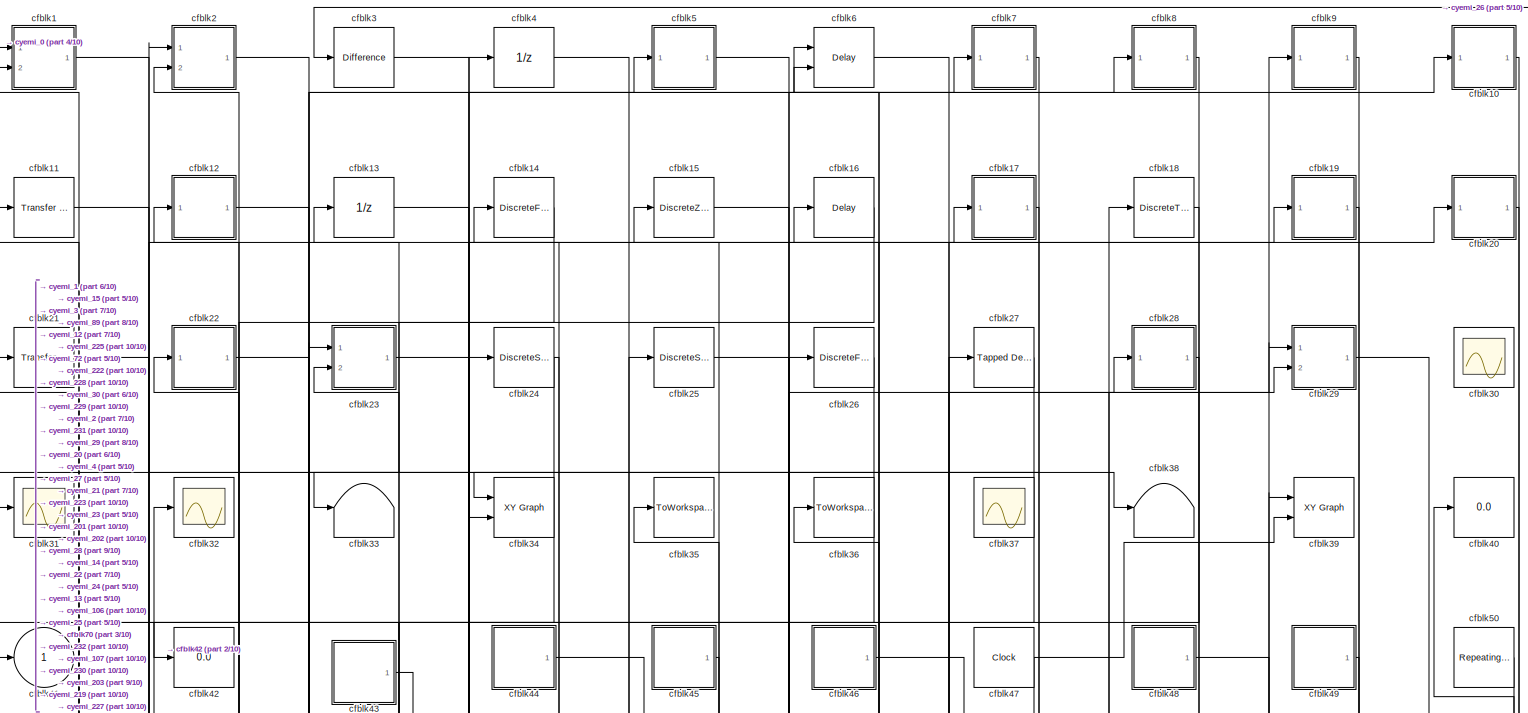
[diagram: root canvas - part 1/10, full width, top band]
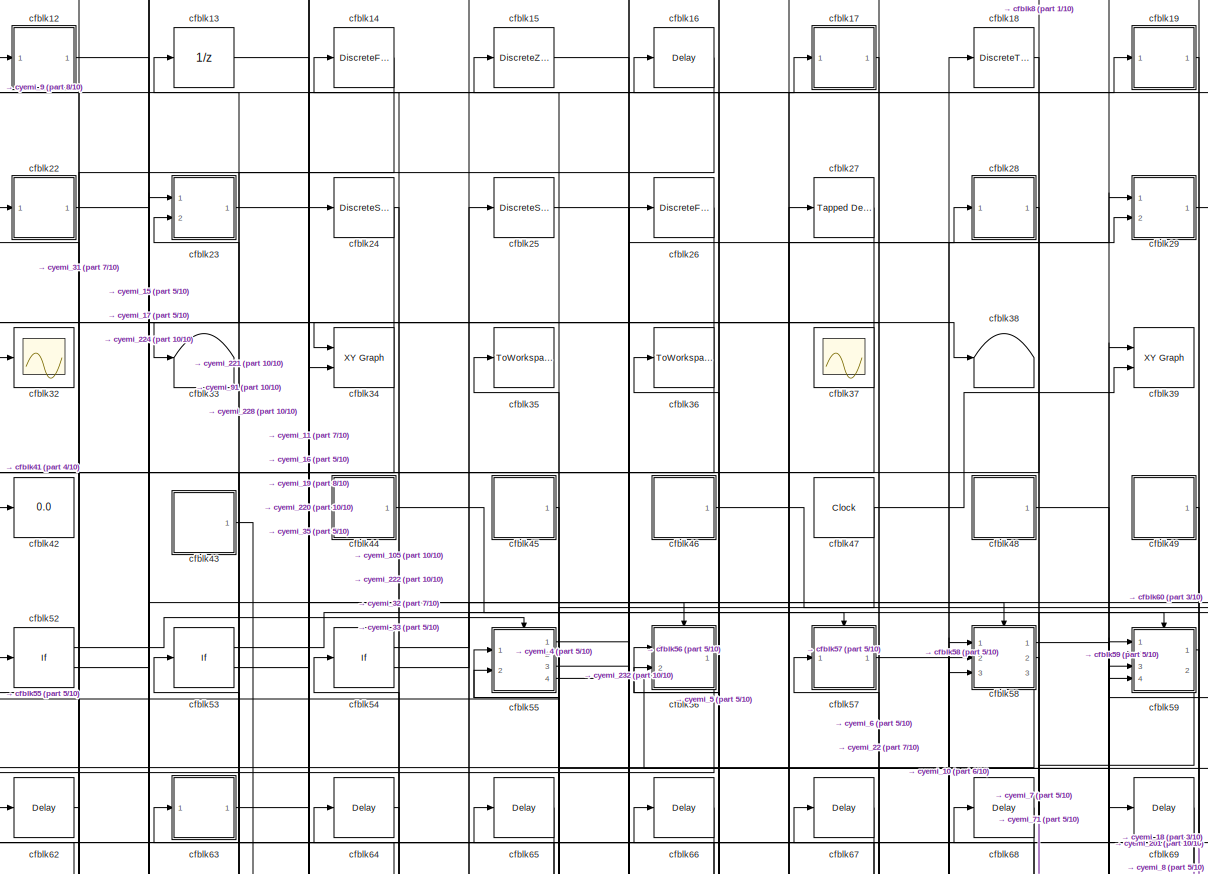
[diagram: root canvas - part 2/10, full width, top band]
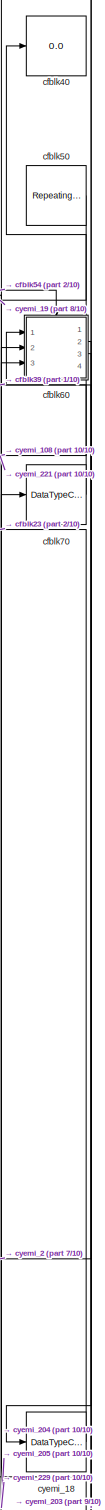
[diagram: root canvas - part 3/10, middle right region]
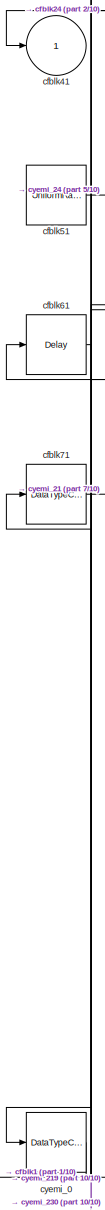
[diagram: root canvas - part 4/10, middle left region]
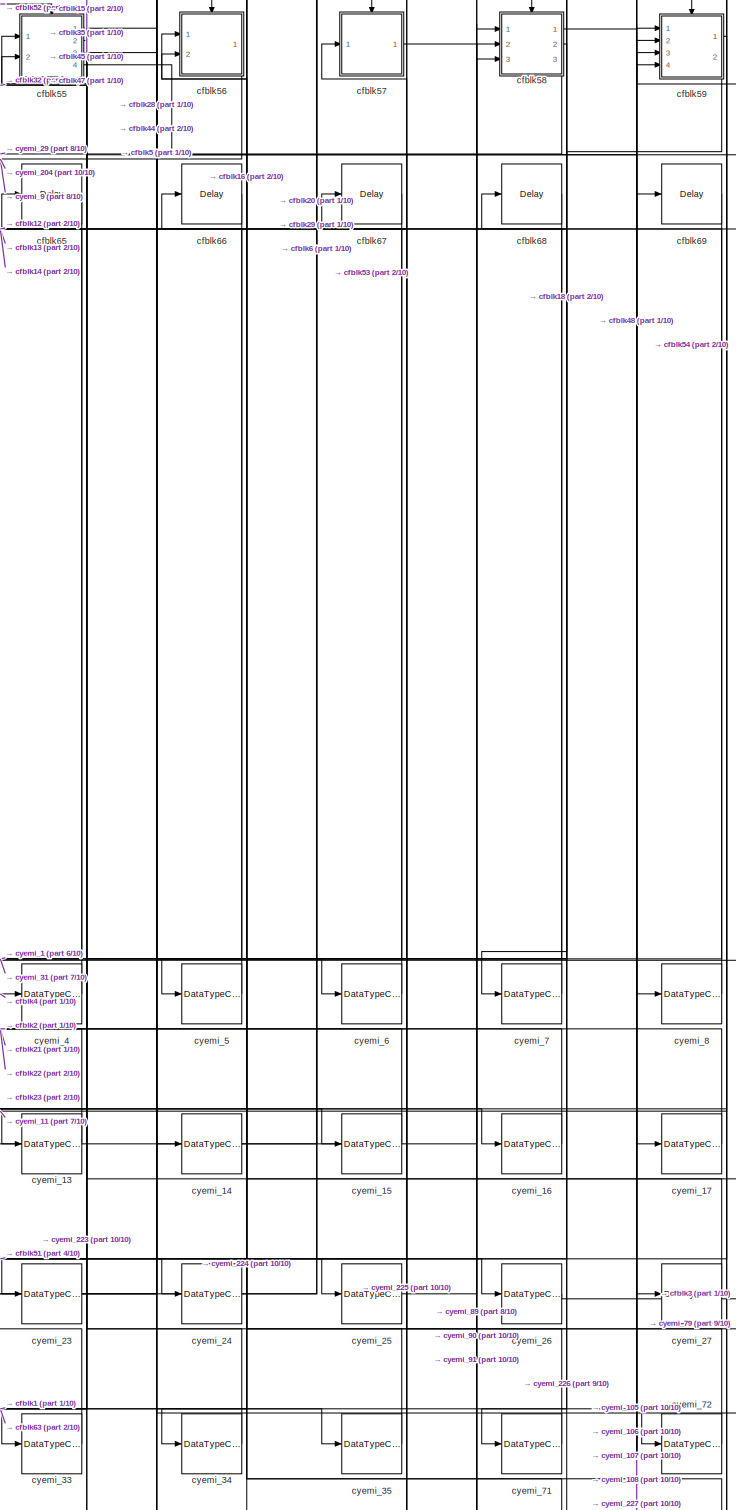
[diagram: root canvas - part 5/10, central region]
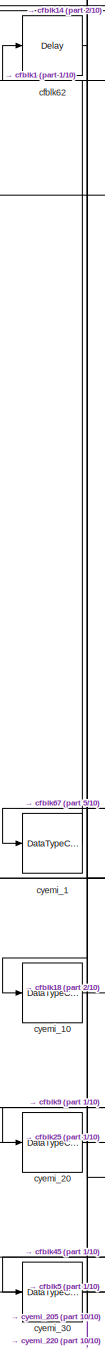
[diagram: root canvas - part 6/10, middle left region]
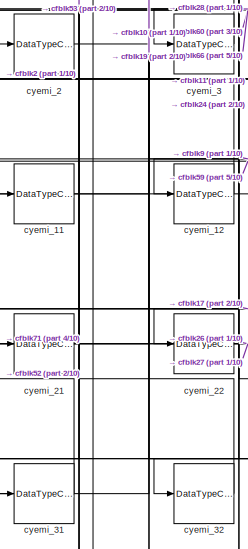
[diagram: root canvas - part 7/10, bottom left region]
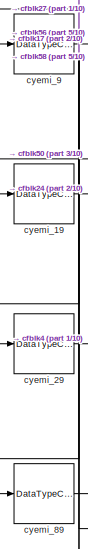
[diagram: root canvas - part 8/10, bottom left region]
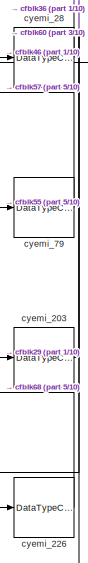
[diagram: root canvas - part 9/10, bottom right region]
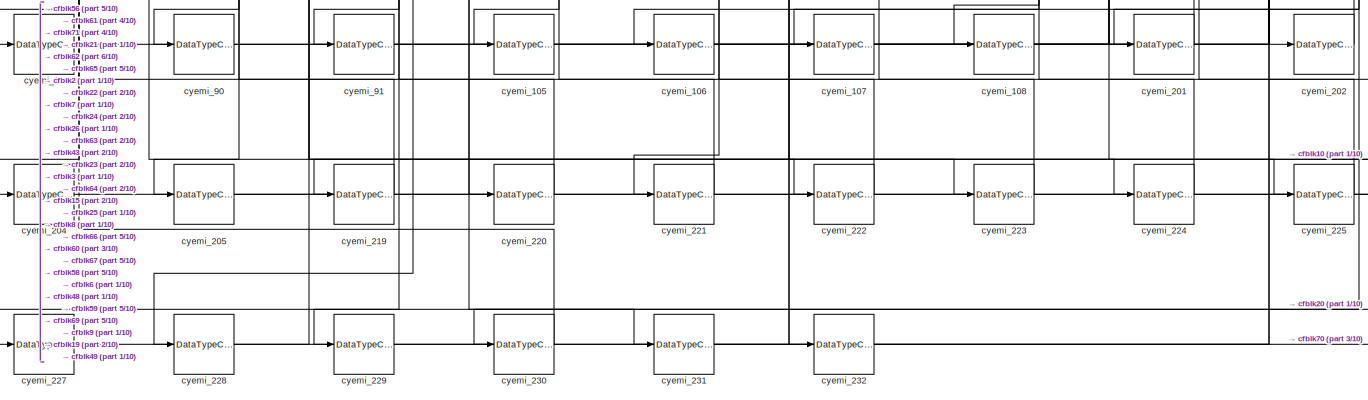
[diagram: root canvas - part 10/10, full width, bottom band]
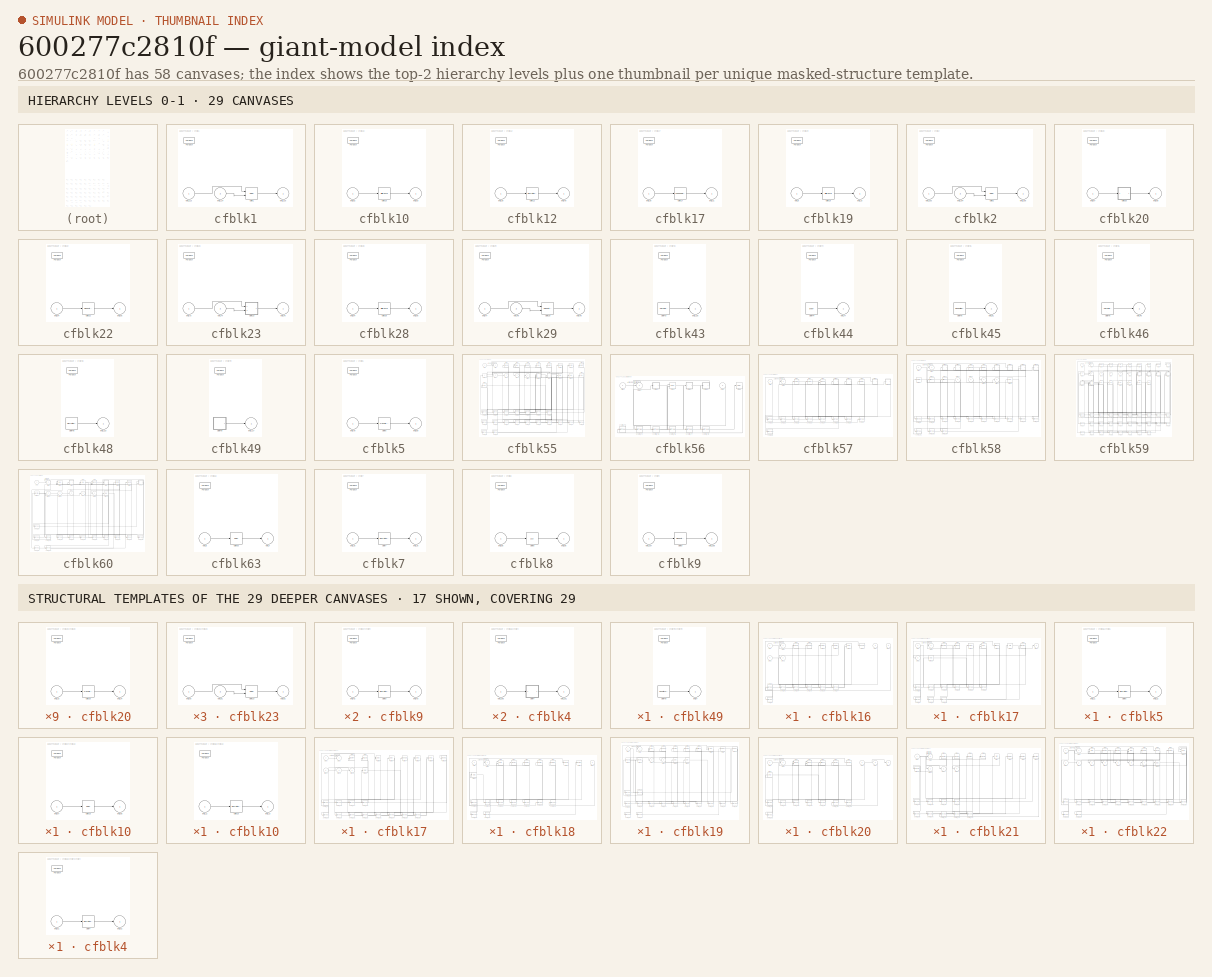
[diagram: thumbnail index - top-2 hierarchy levels (29 canvases) + 17 structural-template representatives of the remaining 29 canvases]
MODEL slx_600277c2810f
KIND model
CONFIG AbsTol = auto
CONFIG EnableMultiTasking = off
CONFIG FixedStep = auto
CONFIG MaxStep = auto
CONFIG MinStep = auto
CONFIG RelTol = 1e-3
CONFIG SampleTimeConstraint = Unconstrained
CONFIG Solver = VariableStepAuto
CONFIG SolverName = VariableStepAuto
CONFIG StartTime = 0.0
CONFIG StopTime = 10.0
BLOCK [SubSystem] cfblk1
  Ports = [2, 1]
  RequestExecContextInheritance = off
  TreatAsAtomicUnit = on
BLOCK [ForEach] cfblk1/For Each
  DisableCoverage = on
  IndexMode = One-based
  Ports = []
BLOCK [Delay] cfblk1/cfblk1
  InputPortMap = u0,e6
  Ports = [2, 1]
  SampleTime = 1
  ShowEnablePort = on
BLOCK [Inport] cfblk1/emi_113
  IconDisplay = Port number
  Partition = on
  PartitionDimension = 1
  PartitionOffset = 0
  PartitionWidth = 1
BLOCK [Inport] cfblk1/emi_114
  IconDisplay = Port number
  Partition = on
  PartitionDimension = 1
  PartitionOffset = 0
  PartitionWidth = 1
  Port = 2
BLOCK [Outport] cfblk1/emi_115
  ConcatenationDimension = 1
  IconDisplay = Port number
BLOCK [SubSystem] cfblk10
  Ports = [1, 1]
  RequestExecContextInheritance = off
  TreatAsAtomicUnit = on
BLOCK [ForEach] cfblk10/For Each
  DisableCoverage = on
  IndexMode = One-based
  Ports = []
BLOCK [Reference] cfblk10/cfblk10  REF=simulink/Discrete/Difference
  Ports = [1, 1]
  SourceBlock = simulink/Discrete/Difference
  SourceProductBaseCode = SL
  SourceProductName = Simulink
  SourceType = Difference
BLOCK [Inport] cfblk10/emi_82
  IconDisplay = Port number
  Partition = on
  PartitionDimension = 1
  PartitionOffset = 0
  PartitionWidth = 1
BLOCK [Outport] cfblk10/emi_83
  ConcatenationDimension = 1
  IconDisplay = Port number
BLOCK [Reference] cfblk11  REF=simulink/Discrete/Transfer Fcn
Lead or Lag
  Ports = [1, 1]
  SourceBlock = simulink/Discrete/Transfer Fcn\nLead or Lag
  SourceProductBaseCode = SL
  SourceProductName = Simulink
  SourceType = Lead or Lag Compensator
BLOCK [SubSystem] cfblk12
  Ports = [1, 1]
  RequestExecContextInheritance = off
  TreatAsAtomicUnit = on
BLOCK [ForEach] cfblk12/For Each
  DisableCoverage = on
  IndexMode = One-based
  Ports = []
BLOCK [DiscreteFilter] cfblk12/cfblk12
  InputPortMap = u0
  Ports = [1, 1]
  SampleTime = 1
BLOCK [Inport] cfblk12/emi_39
  IconDisplay = Port number
  Partition = on
  PartitionDimension = 1
  PartitionOffset = 0
  PartitionWidth = 1
BLOCK [Outport] cfblk12/emi_40
  ConcatenationDimension = 1
  IconDisplay = Port number
BLOCK [UnitDelay] cfblk13
  InputProcessing = Elements as channels (sample based)
BLOCK [DiscreteFilter] cfblk14
  InputPortMap = u0
  Ports = [1, 1]
  SampleTime = 1
BLOCK [DiscreteZeroPole] cfblk15
  Gain = 1
  Poles = [0 0.5]
BLOCK [Delay] cfblk16
  InputPortMap = u0
  Ports = [1, 1]
  SampleTime = 1
BLOCK [SubSystem] cfblk17
  Ports = [1, 1]
  RequestExecContextInheritance = off
  TreatAsAtomicUnit = on
BLOCK [ForEach] cfblk17/For Each
  DisableCoverage = on
  IndexMode = One-based
  Ports = []
BLOCK [Reference] cfblk17/cfblk17  REF=simulink/Discrete/Tapped Delay
  Ports = [1, 1]
  SourceBlock = simulink/Discrete/Tapped Delay
  SourceProductBaseCode = SL
  SourceProductName = Simulink
  SourceType = Tapped Delay Line
BLOCK [Inport] cfblk17/emi_30
  IconDisplay = Port number
  Partition = on
  PartitionDimension = 1
  PartitionOffset = 0
  PartitionWidth = 1
BLOCK [Outport] cfblk17/emi_31
  ConcatenationDimension = 1
  IconDisplay = Port number
BLOCK [DiscreteTransferFcn] cfblk18
  InputPortMap = u0
  Ports = [1, 1]
  SampleTime = 1
BLOCK [SubSystem] cfblk19
  Ports = [1, 1]
  RequestExecContextInheritance = off
  TreatAsAtomicUnit = on
BLOCK [ForEach] cfblk19/For Each
  DisableCoverage = on
  IndexMode = One-based
  Ports = []
BLOCK [Reference] cfblk19/cfblk19  REF=simulink/Discrete/Difference
  Ports = [1, 1]
  SourceBlock = simulink/Discrete/Difference
  SourceProductBaseCode = SL
  SourceProductName = Simulink
  SourceType = Difference
BLOCK [Outport] cfblk19/emi_10
  ConcatenationDimension = 1
  IconDisplay = Port number
BLOCK [Inport] cfblk19/emi_9
  IconDisplay = Port number
  Partition = on
  PartitionDimension = 1
  PartitionOffset = 0
  PartitionWidth = 1
BLOCK [SubSystem] cfblk2
  Ports = [2, 1]
  RequestExecContextInheritance = off
  TreatAsAtomicUnit = on
BLOCK [ForEach] cfblk2/For Each
  DisableCoverage = on
  IndexMode = One-based
  Ports = []
BLOCK [Delay] cfblk2/cfblk2
  InputPortMap = u0,e6
  Ports = [2, 1]
  SampleTime = 1
  ShowEnablePort = on
BLOCK [Inport] cfblk2/emi_103
  IconDisplay = Port number
  Partition = on
  PartitionDimension = 1
  PartitionOffset = 0
  PartitionWidth = 1
BLOCK [Inport] cfblk2/emi_104
  IconDisplay = Port number
  Partition = on
  PartitionDimension = 1
  PartitionOffset = 0
  PartitionWidth = 1
  Port = 2
BLOCK [Outport] cfblk2/emi_105
  ConcatenationDimension = 1
  IconDisplay = Port number
BLOCK [SubSystem] cfblk20
  Ports = [1, 1]
  RequestExecContextInheritance = off
  TreatAsAtomicUnit = on
BLOCK [ForEach] cfblk20/For Each
  DisableCoverage = on
  IndexMode = One-based
  Ports = []
BLOCK [SubSystem] cfblk20/cfblk20
  Ports = [1, 1]
  RequestExecContextInheritance = off
  TreatAsAtomicUnit = on
BLOCK [ForEach] cfblk20/cfblk20/For Each
  DisableCoverage = on
  IndexMode = One-based
  Ports = []
BLOCK [Reference] cfblk20/cfblk20/cfblk20  REF=simulink/Discrete/Transfer Fcn
First Order
  Ports = [1, 1]
  SourceBlock = simulink/Discrete/Transfer Fcn\nFirst Order
  SourceProductBaseCode = SL
  SourceProductName = Simulink
  SourceType = First Order Transfer Fcn
BLOCK [Inport] cfblk20/cfblk20/emi_33
  IconDisplay = Port number
  Partition = on
  PartitionDimension = 1
  PartitionOffset = 0
  PartitionWidth = 1
BLOCK [Outport] cfblk20/cfblk20/emi_34
  ConcatenationDimension = 1
  IconDisplay = Port number
BLOCK [Inport] cfblk20/emi_67
  IconDisplay = Port number
  Partition = on
  PartitionDimension = 1
  PartitionOffset = 0
  PartitionWidth = 1
BLOCK [Outport] cfblk20/emi_68
  ConcatenationDimension = 1
  IconDisplay = Port number
BLOCK [Reference] cfblk21  REF=simulink/Discrete/Transfer Fcn
Lead or Lag
  Ports = [1, 1]
  SourceBlock = simulink/Discrete/Transfer Fcn\nLead or Lag
  SourceProductBaseCode = SL
  SourceProductName = Simulink
  SourceType = Lead or Lag Compensator
BLOCK [SubSystem] cfblk22
  Ports = [1, 1]
  RequestExecContextInheritance = off
  TreatAsAtomicUnit = on
BLOCK [ForEach] cfblk22/For Each
  DisableCoverage = on
  IndexMode = One-based
  Ports = []
BLOCK [Reference] cfblk22/cfblk22  REF=simulink/Continuous/PID Controller
  Ports = [1, 1]
  SourceBlock = simulink/Continuous/PID Controller
  SourceProductBaseCode = SL
  SourceProductName = Simulink
  SourceType = PID 1dof
BLOCK [Inport] cfblk22/emi_54
  IconDisplay = Port number
  Partition = on
  PartitionDimension = 1
  PartitionOffset = 0
  PartitionWidth = 1
BLOCK [Outport] cfblk22/emi_55
  ConcatenationDimension = 1
  IconDisplay = Port number
BLOCK [SubSystem] cfblk23
  Ports = [2, 1]
  RequestExecContextInheritance = off
  TreatAsAtomicUnit = on
BLOCK [ForEach] cfblk23/For Each
  DisableCoverage = on
  IndexMode = One-based
  Ports = []
BLOCK [SubSystem] cfblk23/cfblk23
  Ports = [2, 1]
  RequestExecContextInheritance = off
  TreatAsAtomicUnit = on
BLOCK [ForEach] cfblk23/cfblk23/For Each
  DisableCoverage = on
  IndexMode = One-based
  Ports = []
BLOCK [Delay] cfblk23/cfblk23/cfblk23
  DelayLengthSource = Input port
  InputPortMap = u0,p1
  Ports = [2, 1]
  SampleTime = 1
BLOCK [Inport] cfblk23/cfblk23/emi_60
  IconDisplay = Port number
  Partition = on
  PartitionDimension = 1
  PartitionOffset = 0
  PartitionWidth = 1
BLOCK [Inport] cfblk23/cfblk23/emi_61
  IconDisplay = Port number
  Partition = on
  PartitionDimension = 1
  PartitionOffset = 0
  PartitionWidth = 1
  Port = 2
BLOCK [Outport] cfblk23/cfblk23/emi_62
  ConcatenationDimension = 1
  IconDisplay = Port number
BLOCK [Inport] cfblk23/emi_73
  IconDisplay = Port number
  Partition = on
  PartitionDimension = 1
  PartitionOffset = 0
  PartitionWidth = 1
BLOCK [Inport] cfblk23/emi_74
  IconDisplay = Port number
  Partition = on
  PartitionDimension = 1
  PartitionOffset = 0
  PartitionWidth = 1
  Port = 2
BLOCK [Outport] cfblk23/emi_75
  ConcatenationDimension = 1
  IconDisplay = Port number
BLOCK [DiscreteStateSpace] cfblk24
BLOCK [DiscreteStateSpace] cfblk25
BLOCK [DiscreteFilter] cfblk26
  InputPortMap = u0
  Ports = [1, 1]
  SampleTime = 1
BLOCK [Reference] cfblk27  REF=simulink/Discrete/Tapped Delay
  Ports = [1, 1]
  SourceBlock = simulink/Discrete/Tapped Delay
  SourceProductBaseCode = SL
  SourceProductName = Simulink
  SourceType = Tapped Delay Line
BLOCK [SubSystem] cfblk28
  Ports = [1, 1]
  RequestExecContextInheritance = off
  TreatAsAtomicUnit = on
BLOCK [ForEach] cfblk28/For Each
  DisableCoverage = on
  IndexMode = One-based
  Ports = []
BLOCK [Reference] cfblk28/cfblk28  REF=simulink/Discrete/Difference
  Ports = [1, 1]
  SourceBlock = simulink/Discrete/Difference
  SourceProductBaseCode = SL
  SourceProductName = Simulink
  SourceType = Difference
BLOCK [Inport] cfblk28/emi_64
  IconDisplay = Port number
  Partition = on
  PartitionDimension = 1
  PartitionOffset = 0
  PartitionWidth = 1
BLOCK [Outport] cfblk28/emi_65
  ConcatenationDimension = 1
  IconDisplay = Port number
BLOCK [SubSystem] cfblk29
  Ports = [2, 1]
  RequestExecContextInheritance = off
  TreatAsAtomicUnit = on
BLOCK [ForEach] cfblk29/For Each
  DisableCoverage = on
  IndexMode = One-based
  Ports = []
BLOCK [Reference] cfblk29/cfblk29  REF=simulink/Continuous/PID Controller (2DOF)
  Ports = [2, 1]
  SourceBlock = simulink/Continuous/PID Controller (2DOF)
  SourceProductBaseCode = SL
  SourceProductName = Simulink
  SourceType = PID 2dof
BLOCK [Inport] cfblk29/emi_47
  IconDisplay = Port number
  Partition = on
  PartitionDimension = 1
  PartitionOffset = 0
  PartitionWidth = 1
BLOCK [Inport] cfblk29/emi_48
  IconDisplay = Port number
  Partition = on
  PartitionDimension = 1
  PartitionOffset = 0
  PartitionWidth = 1
  Port = 2
BLOCK [Outport] cfblk29/emi_49
  ConcatenationDimension = 1
  IconDisplay = Port number
BLOCK [Reference] cfblk3  REF=simulink/Discrete/Difference
  Ports = [1, 1]
  SourceBlock = simulink/Discrete/Difference
  SourceProductBaseCode = SL
  SourceProductName = Simulink
  SourceType = Difference
BLOCK [Scope] cfblk30
  Floating = on
  NumInputPorts = 1
  Ports = []
  ScopeSpecificationString = Simulink.scopes.TimeScopeBlockCfg('CurrentConfiguration', extmgr.ConfigurationSet(extmgr.Configuration('Core','General UI',true),extmgr.Configuration('Core','Source UI',true),extmgr.Configuration('Sources','WiredSimulink',true),extmgr.Configuration('Visuals','Time Domain',true),extmgr.Configuration('Tools','Plot Navigation',true),extmgr.Configuration('Tools','Measurements',true)),'Version','2018a'...<+1ch>  <repeated x4 — deduplicated; at blocks: cfblk30, cfblk31, cfblk32, cfblk37>
BLOCK [Scope] cfblk31
  Floating = off
  NumInputPorts = 1
  Ports = [1]
BLOCK [Scope] cfblk32
  Floating = off
  NumInputPorts = 1
  Ports = [1]
BLOCK [Terminator] cfblk33
BLOCK [Reference] cfblk34  REF=simulink/Sinks/XY Graph
  Ports = [2]
  SourceBlock = simulink/Sinks/XY Graph
  SourceProductBaseCode = SL
  SourceProductName = Simulink
  SourceType = XY scope.
BLOCK [ToWorkspace] cfblk35
  FixptAsFi = on
  MaxDataPoints = inf
  Ports = [1]
  SampleTime = -1
  Save2DSignal = 3-D array (concatenate along third dimension)
  SaveFormat = Timeseries
  VariableName = tnwtldk
BLOCK [ToWorkspace] cfblk36
  FixptAsFi = on
  MaxDataPoints = inf
  Ports = [1]
  SampleTime = -1
  Save2DSignal = 3-D array (concatenate along third dimension)
  SaveFormat = Timeseries
  VariableName = brfiina
BLOCK [Scope] cfblk37
  Floating = on
  NumInputPorts = 1
  Ports = []
BLOCK [Terminator] cfblk38
BLOCK [Reference] cfblk39  REF=simulink/Sinks/XY Graph
  Ports = [2]
  SourceBlock = simulink/Sinks/XY Graph
  SourceProductBaseCode = SL
  SourceProductName = Simulink
  SourceType = XY scope.
BLOCK [UnitDelay] cfblk4
  InputProcessing = Elements as channels (sample based)
BLOCK [Display] cfblk40
  Decimation = 1
  Ports = [1]
BLOCK [Outport] cfblk41
  IconDisplay = Port number
BLOCK [Display] cfblk42
  Decimation = 1
  Ports = [1]
BLOCK [SubSystem] cfblk43
  Ports = [0, 1]
  RequestExecContextInheritance = off
  TreatAsAtomicUnit = on
BLOCK [ForEach] cfblk43/For Each
  DisableCoverage = on
  IndexMode = One-based
  Ports = []
BLOCK [Reference] cfblk43/cfblk43  REF=simulink/Sources/Chirp Signal
  Ports = [0, 1]
  SourceBlock = simulink/Sources/Chirp Signal
  SourceProductBaseCode = SL
  SourceProductName = Simulink
  SourceType = chirp
BLOCK [Outport] cfblk43/emi_125
  ConcatenationDimension = 1
  IconDisplay = Port number
BLOCK [SubSystem] cfblk44
  Ports = [0, 1]
  RequestExecContextInheritance = off
  TreatAsAtomicUnit = on
BLOCK [ForEach] cfblk44/For Each
  DisableCoverage = on
  IndexMode = One-based
  Ports = []
BLOCK [Constant] cfblk44/cfblk44
  OutDataTypeStr = double
  SampleTime = 1
  Value = 0797
BLOCK [Outport] cfblk44/emi_77
  ConcatenationDimension = 1
  IconDisplay = Port number
BLOCK [SubSystem] cfblk45
  Ports = [0, 1]
  RequestExecContextInheritance = off
  TreatAsAtomicUnit = on
BLOCK [ForEach] cfblk45/For Each
  DisableCoverage = on
  IndexMode = One-based
  Ports = []
BLOCK [Reference] cfblk45/cfblk45  REF=simulink/Sources/Repeating
Sequence
Stair
  Ports = [0, 1]
  SourceBlock = simulink/Sources/Repeating\nSequence\nStair
  SourceProductBaseCode = SL
  SourceProductName = Simulink
  SourceType = Repeating Sequence Stair
BLOCK [Outport] cfblk45/emi_91
  ConcatenationDimension = 1
  IconDisplay = Port number
BLOCK [SubSystem] cfblk46
  Ports = [0, 1]
  RequestExecContextInheritance = off
  TreatAsAtomicUnit = on
BLOCK [ForEach] cfblk46/For Each
  DisableCoverage = on
  IndexMode = One-based
  Ports = []
BLOCK [Reference] cfblk46/cfblk46  REF=simulink/Sources/Chirp Signal
  Ports = [0, 1]
  SourceBlock = simulink/Sources/Chirp Signal
  SourceProductBaseCode = SL
  SourceProductName = Simulink
  SourceType = chirp
BLOCK [Outport] cfblk46/emi_45
  ConcatenationDimension = 1
  IconDisplay = Port number
BLOCK [Clock] cfblk47
BLOCK [SubSystem] cfblk48
  Ports = [0, 1]
  RequestExecContextInheritance = off
  TreatAsAtomicUnit = on
BLOCK [ForEach] cfblk48/For Each
  DisableCoverage = on
  IndexMode = One-based
  Ports = []
BLOCK [DiscretePulseGenerator] cfblk48/cfblk48
  Period = 10
  Ports = [0, 1]
  PulseType = Time based
  PulseWidth = 5
BLOCK [Outport] cfblk48/emi_123
  ConcatenationDimension = 1
  IconDisplay = Port number
BLOCK [SubSystem] cfblk49
  Ports = [0, 1]
  RequestExecContextInheritance = off
  TreatAsAtomicUnit = on
BLOCK [ForEach] cfblk49/For Each
  DisableCoverage = on
  IndexMode = One-based
  Ports = []
BLOCK [SubSystem] cfblk49/cfblk49
  Ports = [0, 1]
  RequestExecContextInheritance = off
  TreatAsAtomicUnit = on
BLOCK [ForEach] cfblk49/cfblk49/For Each
  DisableCoverage = on
  IndexMode = One-based
  Ports = []
BLOCK [Reference] cfblk49/cfblk49/cfblk49  REF=simulink/Sources/Counter
Free-Running
  Ports = [0, 1]
  SourceBlock = simulink/Sources/Counter\nFree-Running
  SourceProductBaseCode = SL
  SourceProductName = Simulink
  SourceType = Counter Free-Running
BLOCK [Outport] cfblk49/cfblk49/emi_4
  ConcatenationDimension = 1
  IconDisplay = Port number
BLOCK [Outport] cfblk49/emi_117
  ConcatenationDimension = 1
  IconDisplay = Port number
BLOCK [SubSystem] cfblk5
  Ports = [1, 1]
  RequestExecContextInheritance = off
  TreatAsAtomicUnit = on
BLOCK [ForEach] cfblk5/For Each
  DisableCoverage = on
  IndexMode = One-based
  Ports = []
BLOCK [Reference] cfblk5/cfblk5  REF=simulink/Discrete/Transfer Fcn
Real Zero
  Ports = [1, 1]
  SourceBlock = simulink/Discrete/Transfer Fcn\nReal Zero
  SourceProductBaseCode = SL
  SourceProductName = Simulink
  SourceType = Transfer Fcn Real Zero
BLOCK [Inport] cfblk5/emi_79
  IconDisplay = Port number
  Partition = on
  PartitionDimension = 1
  PartitionOffset = 0
  PartitionWidth = 1
BLOCK [Outport] cfblk5/emi_80
  ConcatenationDimension = 1
  IconDisplay = Port number
BLOCK [Reference] cfblk50  REF=simulink/Sources/Repeating
Sequence
  Ports = [0, 1]
  SourceBlock = simulink/Sources/Repeating\nSequence
  SourceProductBaseCode = SL
  SourceProductName = Simulink
  SourceType = Repeating table
BLOCK [UniformRandomNumber] cfblk51
  SampleTime = 0.1
BLOCK [If] cfblk52
  Ports = [1, 2]
  SampleTime = 1
BLOCK [If] cfblk53
  Ports = [1, 2]
  SampleTime = 1
BLOCK [If] cfblk54
  Ports = [1, 2]
  SampleTime = 1
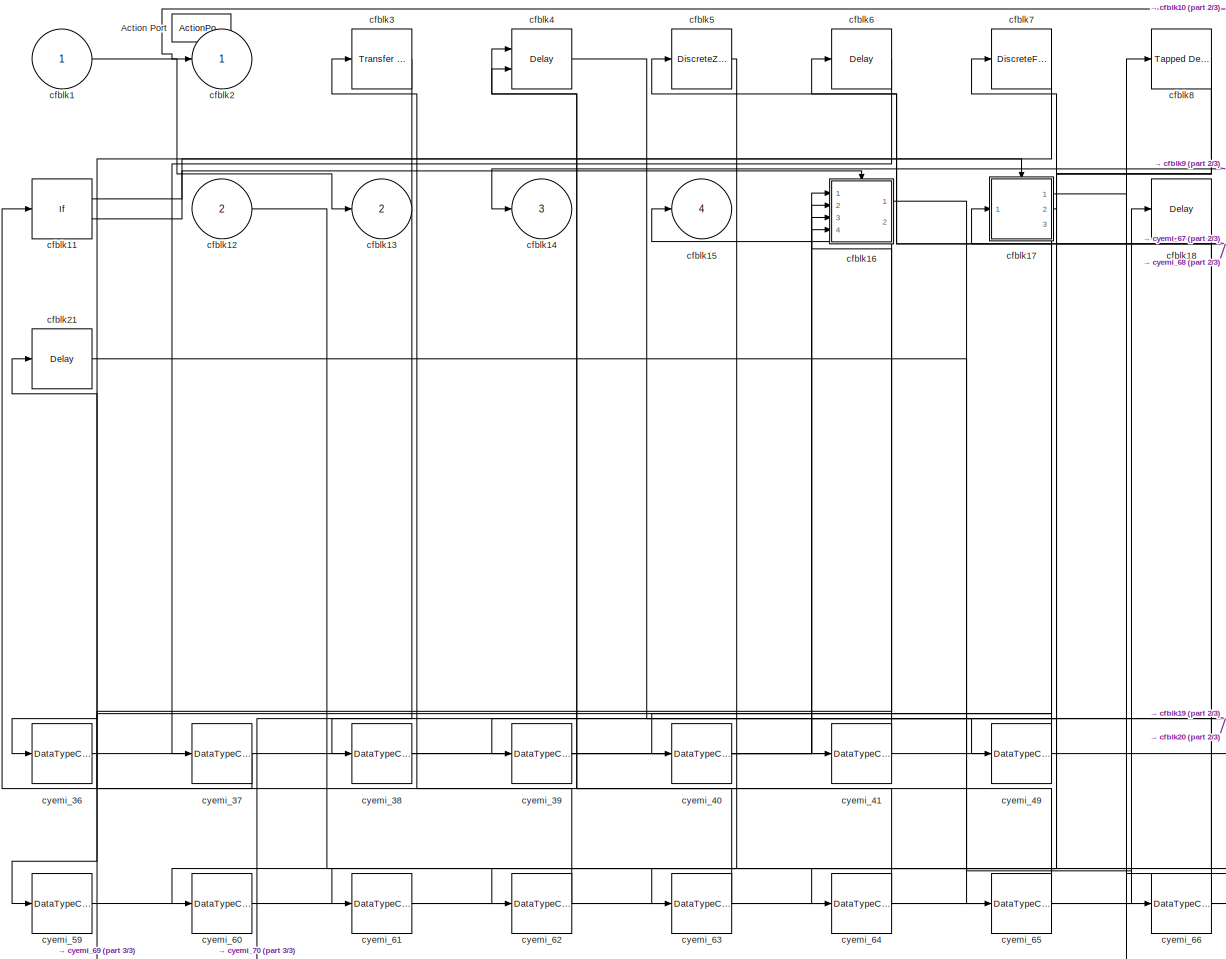
[diagram: cfblk55 - part 1/3, most of the canvas]
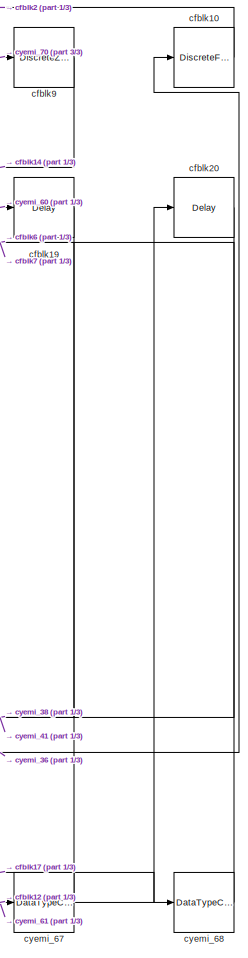
[diagram: cfblk55 - part 2/3, right side, full height]
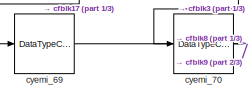
[diagram: cfblk55 - part 3/3, bottom left region]
BLOCK [SubSystem] cfblk55
  Ports = [2, 4, 0, 0, 0, 0, 0, 1]
  RequestExecContextInheritance = off
  TreatAsAtomicUnit = on
BLOCK [ActionPort] cfblk55/Action Port
  ActionType = then
BLOCK [Inport] cfblk55/cfblk1
  IconDisplay = Port number
BLOCK [DiscreteFir] cfblk55/cfblk10
  InputPortMap = u0
  OutputPortMap = o0
  Ports = [1, 1]
BLOCK [If] cfblk55/cfblk11
  Ports = [1, 2]
  SampleTime = 1
BLOCK [Inport] cfblk55/cfblk12
  IconDisplay = Port number
  Port = 2
BLOCK [Outport] cfblk55/cfblk13
  IconDisplay = Port number
  Port = 2
BLOCK [Outport] cfblk55/cfblk14
  IconDisplay = Port number
  Port = 3
BLOCK [Outport] cfblk55/cfblk15
  IconDisplay = Port number
  Port = 4
BLOCK [SubSystem] cfblk55/cfblk16
  Ports = [4, 2, 0, 0, 0, 0, 0, 1]
  RequestExecContextInheritance = off
  TreatAsAtomicUnit = on
BLOCK [ActionPort] cfblk55/cfblk16/Action Port
  ActionType = then
BLOCK [Inport] cfblk55/cfblk16/cfblk1
  IconDisplay = Port number
BLOCK [Inport] cfblk55/cfblk16/cfblk10
  IconDisplay = Port number
  Port = 3
BLOCK [Inport] cfblk55/cfblk16/cfblk11
  IconDisplay = Port number
  Port = 4
BLOCK [Outport] cfblk55/cfblk16/cfblk12
  IconDisplay = Port number
  Port = 2
BLOCK [Outport] cfblk55/cfblk16/cfblk2
  IconDisplay = Port number
BLOCK [Reference] cfblk55/cfblk16/cfblk3  REF=simulink/Discrete/Transfer Fcn
Real Zero
  Ports = [1, 1]
  SourceBlock = simulink/Discrete/Transfer Fcn\nReal Zero
  SourceProductBaseCode = SL
  SourceProductName = Simulink
  SourceType = Transfer Fcn Real Zero
BLOCK [Reference] cfblk55/cfblk16/cfblk4  REF=simulink/Discrete/Tapped Delay
  Ports = [1, 1]
  SourceBlock = simulink/Discrete/Tapped Delay
  SourceProductBaseCode = SL
  SourceProductName = Simulink
  SourceType = Tapped Delay Line
BLOCK [DiscreteZeroPole] cfblk55/cfblk16/cfblk5
  Gain = 1
  Poles = [0 0.5]
  SampleTime = -1
BLOCK [DiscreteFir] cfblk55/cfblk16/cfblk6
  InputPortMap = u0
  OutputPortMap = o0
  Ports = [1, 1]
BLOCK [Delay] cfblk55/cfblk16/cfblk7
  DelayLengthSource = Input port
  InputPortMap = u0,p1
  Ports = [2, 1]
BLOCK [Reference] cfblk55/cfblk16/cfblk8  REF=simulink/Discrete/Tapped Delay
  Ports = [1, 1]
  SourceBlock = simulink/Discrete/Tapped Delay
  SourceProductBaseCode = SL
  SourceProductName = Simulink
  SourceType = Tapped Delay Line
BLOCK [Inport] cfblk55/cfblk16/cfblk9
  IconDisplay = Port number
  Port = 2
BLOCK [DataTypeConversion] cfblk55/cfblk16/cyemi_42
  OutDataTypeStr = double
  RndMeth = Floor
  SaturateOnIntegerOverflow = off
BLOCK [DataTypeConversion] cfblk55/cfblk16/cyemi_43
  OutDataTypeStr = double
  RndMeth = Floor
  SaturateOnIntegerOverflow = off
BLOCK [DataTypeConversion] cfblk55/cfblk16/cyemi_44
  OutDataTypeStr = double
  RndMeth = Floor
  SaturateOnIntegerOverflow = off
BLOCK [DataTypeConversion] cfblk55/cfblk16/cyemi_45
  OutDataTypeStr = double
  RndMeth = Floor
  SaturateOnIntegerOverflow = off
BLOCK [DataTypeConversion] cfblk55/cfblk16/cyemi_46
  OutDataTypeStr = double
  RndMeth = Floor
  SaturateOnIntegerOverflow = off
BLOCK [DataTypeConversion] cfblk55/cfblk16/cyemi_47
  OutDataTypeStr = double
  RndMeth = Floor
  SaturateOnIntegerOverflow = off
BLOCK [DataTypeConversion] cfblk55/cfblk16/cyemi_48
  OutDataTypeStr = double
  RndMeth = Floor
  SaturateOnIntegerOverflow = off
BLOCK [SubSystem] cfblk55/cfblk17
  Ports = [1, 3, 0, 0, 0, 0, 0, 1]
  RequestExecContextInheritance = off
  TreatAsAtomicUnit = on
BLOCK [ActionPort] cfblk55/cfblk17/Action Port
  ActionType = else
BLOCK [Inport] cfblk55/cfblk17/cfblk1
  IconDisplay = Port number
BLOCK [Outport] cfblk55/cfblk17/cfblk10
  IconDisplay = Port number
  Port = 2
BLOCK [Outport] cfblk55/cfblk17/cfblk11
  IconDisplay = Port number
  Port = 3
BLOCK [Delay] cfblk55/cfblk17/cfblk12
  InputPortMap = u0
  Ports = [1, 1]
BLOCK [Outport] cfblk55/cfblk17/cfblk2
  IconDisplay = Port number
BLOCK [DiscreteIntegrator] cfblk55/cfblk17/cfblk3
  ICPrevOutput = DiscIntNeverNeededParam
  ICPrevScaledInput = DiscIntNeverNeededParam
  InitialConditionSetting = Auto
  OutDataTypeStr = double
  Ports = [1, 1]
  SampleTime = -1
BLOCK [Reference] cfblk55/cfblk17/cfblk4  REF=simulink/Continuous/PID Controller
  Ports = [1, 1]
  SourceBlock = simulink/Continuous/PID Controller
  SourceProductBaseCode = SL
  SourceProductName = Simulink
  SourceType = PID 1dof
BLOCK [DiscreteTransferFcn] cfblk55/cfblk17/cfblk5
  InputPortMap = u0
  Ports = [1, 1]
BLOCK [Delay] cfblk55/cfblk17/cfblk6
  DelayLengthSource = Input port
  InputPortMap = u0,p1
  Ports = [2, 1]
BLOCK [Reference] cfblk55/cfblk17/cfblk7  REF=simulink/Discrete/Difference
  Ports = [1, 1]
  SourceBlock = simulink/Discrete/Difference
  SourceProductBaseCode = SL
  SourceProductName = Simulink
  SourceType = Difference
BLOCK [UnitDelay] cfblk55/cfblk17/cfblk8
  InputProcessing = Elements as channels (sample based)
  SampleTime = -1
BLOCK [DiscreteTransferFcn] cfblk55/cfblk17/cfblk9
  InputPortMap = u0
  Ports = [1, 1]
BLOCK [DataTypeConversion] cfblk55/cfblk17/cyemi_50
  OutDataTypeStr = double
  RndMeth = Floor
  SaturateOnIntegerOverflow = off
BLOCK [DataTypeConversion] cfblk55/cfblk17/cyemi_51
  OutDataTypeStr = double
  RndMeth = Floor
  SaturateOnIntegerOverflow = off
BLOCK [DataTypeConversion] cfblk55/cfblk17/cyemi_52
  OutDataTypeStr = double
  RndMeth = Floor
  SaturateOnIntegerOverflow = off
BLOCK [DataTypeConversion] cfblk55/cfblk17/cyemi_53
  OutDataTypeStr = double
  RndMeth = Floor
  SaturateOnIntegerOverflow = off
BLOCK [DataTypeConversion] cfblk55/cfblk17/cyemi_54
  OutDataTypeStr = double
  RndMeth = Floor
  SaturateOnIntegerOverflow = off
BLOCK [DataTypeConversion] cfblk55/cfblk17/cyemi_55
  OutDataTypeStr = double
  RndMeth = Floor
  SaturateOnIntegerOverflow = off
BLOCK [DataTypeConversion] cfblk55/cfblk17/cyemi_56
  OutDataTypeStr = double
  RndMeth = Floor
  SaturateOnIntegerOverflow = off
BLOCK [DataTypeConversion] cfblk55/cfblk17/cyemi_57
  OutDataTypeStr = double
  RndMeth = Floor
  SaturateOnIntegerOverflow = off
BLOCK [DataTypeConversion] cfblk55/cfblk17/cyemi_58
  OutDataTypeStr = double
  RndMeth = Floor
  SaturateOnIntegerOverflow = off
BLOCK [Delay] cfblk55/cfblk18
  InputPortMap = u0
  Ports = [1, 1]
BLOCK [Delay] cfblk55/cfblk19
  InputPortMap = u0
  Ports = [1, 1]
BLOCK [Outport] cfblk55/cfblk2
  IconDisplay = Port number
BLOCK [Delay] cfblk55/cfblk20
  InputPortMap = u0
  Ports = [1, 1]
BLOCK [Delay] cfblk55/cfblk21
  InputPortMap = u0
  Ports = [1, 1]
BLOCK [Reference] cfblk55/cfblk3  REF=simulink/Discrete/Transfer Fcn
First Order
  Ports = [1, 1]
  SourceBlock = simulink/Discrete/Transfer Fcn\nFirst Order
  SourceProductBaseCode = SL
  SourceProductName = Simulink
  SourceType = First Order Transfer Fcn
BLOCK [Delay] cfblk55/cfblk4
  InputPortMap = u0,e6
  Ports = [2, 1]
  ShowEnablePort = on
BLOCK [DiscreteZeroPole] cfblk55/cfblk5
  Gain = 1
  Poles = [0 0.5]
  SampleTime = -1
BLOCK [Delay] cfblk55/cfblk6
  InputPortMap = u0
  Ports = [1, 1]
BLOCK [DiscreteFilter] cfblk55/cfblk7
  InputPortMap = u0
  Ports = [1, 1]
BLOCK [Reference] cfblk55/cfblk8  REF=simulink/Discrete/Tapped Delay
  Ports = [1, 1]
  SourceBlock = simulink/Discrete/Tapped Delay
  SourceProductBaseCode = SL
  SourceProductName = Simulink
  SourceType = Tapped Delay Line
BLOCK [DiscreteZeroPole] cfblk55/cfblk9
  Gain = 1
  Poles = [0 0.5]
  SampleTime = -1
BLOCK [DataTypeConversion] cfblk55/cyemi_36
  OutDataTypeStr = double
  RndMeth = Floor
  SaturateOnIntegerOverflow = off
BLOCK [DataTypeConversion] cfblk55/cyemi_37
  OutDataTypeStr = double
  RndMeth = Floor
  SaturateOnIntegerOverflow = off
BLOCK [DataTypeConversion] cfblk55/cyemi_38
  OutDataTypeStr = double
  RndMeth = Floor
  SaturateOnIntegerOverflow = off
BLOCK [DataTypeConversion] cfblk55/cyemi_39
  OutDataTypeStr = double
  RndMeth = Floor
  SaturateOnIntegerOverflow = off
BLOCK [DataTypeConversion] cfblk55/cyemi_40
  OutDataTypeStr = double
  RndMeth = Floor
  SaturateOnIntegerOverflow = off
BLOCK [DataTypeConversion] cfblk55/cyemi_41
  OutDataTypeStr = double
  RndMeth = Floor
  SaturateOnIntegerOverflow = off
BLOCK [DataTypeConversion] cfblk55/cyemi_49
  OutDataTypeStr = double
  RndMeth = Floor
  SaturateOnIntegerOverflow = off
BLOCK [DataTypeConversion] cfblk55/cyemi_59
  OutDataTypeStr = double
  RndMeth = Floor
  SaturateOnIntegerOverflow = off
BLOCK [DataTypeConversion] cfblk55/cyemi_60
  OutDataTypeStr = double
  RndMeth = Floor
  SaturateOnIntegerOverflow = off
BLOCK [DataTypeConversion] cfblk55/cyemi_61
  OutDataTypeStr = double
  RndMeth = Floor
  SaturateOnIntegerOverflow = off
BLOCK [DataTypeConversion] cfblk55/cyemi_62
  OutDataTypeStr = double
  RndMeth = Floor
  SaturateOnIntegerOverflow = off
BLOCK [DataTypeConversion] cfblk55/cyemi_63
  OutDataTypeStr = double
  RndMeth = Floor
  SaturateOnIntegerOverflow = off
BLOCK [DataTypeConversion] cfblk55/cyemi_64
  OutDataTypeStr = double
  RndMeth = Floor
  SaturateOnIntegerOverflow = off
BLOCK [DataTypeConversion] cfblk55/cyemi_65
  OutDataTypeStr = double
  RndMeth = Floor
  SaturateOnIntegerOverflow = off
BLOCK [DataTypeConversion] cfblk55/cyemi_66
  OutDataTypeStr = double
  RndMeth = Floor
  SaturateOnIntegerOverflow = off
BLOCK [DataTypeConversion] cfblk55/cyemi_67
  OutDataTypeStr = double
  RndMeth = Floor
  SaturateOnIntegerOverflow = off
BLOCK [DataTypeConversion] cfblk55/cyemi_68
  OutDataTypeStr = double
  RndMeth = Floor
  SaturateOnIntegerOverflow = off
BLOCK [DataTypeConversion] cfblk55/cyemi_69
  OutDataTypeStr = double
  RndMeth = Floor
  SaturateOnIntegerOverflow = off
BLOCK [DataTypeConversion] cfblk55/cyemi_70
  OutDataTypeStr = double
  RndMeth = Floor
  SaturateOnIntegerOverflow = off
BLOCK [SubSystem] cfblk56
  Ports = [2, 1, 0, 0, 0, 0, 0, 1]
  RequestExecContextInheritance = off
  TreatAsAtomicUnit = on
BLOCK [ActionPort] cfblk56/Action Port
  ActionType = else
BLOCK [Inport] cfblk56/cfblk1
  IconDisplay = Port number
BLOCK [Outport] cfblk56/cfblk2
  IconDisplay = Port number
BLOCK [SubSystem] cfblk56/cfblk3
  Ports = [1, 1]
  RequestExecContextInheritance = off
  TreatAsAtomicUnit = on
BLOCK [ForEach] cfblk56/cfblk3/For Each
  DisableCoverage = on
  IndexMode = One-based
  Ports = []
BLOCK [Reference] cfblk56/cfblk3/cfblk3  REF=simulink/Discrete/Transfer Fcn
First Order
  Ports = [1, 1]
  SourceBlock = simulink/Discrete/Transfer Fcn\nFirst Order
  SourceProductBaseCode = SL
  SourceProductName = Simulink
  SourceType = First Order Transfer Fcn
BLOCK [Inport] cfblk56/cfblk3/emi_110
  IconDisplay = Port number
  Partition = on
  PartitionDimension = 1
  PartitionOffset = 0
  PartitionWidth = 1
BLOCK [Outport] cfblk56/cfblk3/emi_111
  ConcatenationDimension = 1
  IconDisplay = Port number
BLOCK [Delay] cfblk56/cfblk4
  InputPortMap = u0,e6
  Ports = [2, 1]
  ShowEnablePort = on
BLOCK [SubSystem] cfblk56/cfblk5
  Ports = [1, 1]
  RequestExecContextInheritance = off
  TreatAsAtomicUnit = on
BLOCK [ForEach] cfblk56/cfblk5/For Each
  DisableCoverage = on
  IndexMode = One-based
  Ports = []
BLOCK [DiscreteStateSpace] cfblk56/cfblk5/cfblk5
  SampleTime = -1
BLOCK [Inport] cfblk56/cfblk5/emi_21
  IconDisplay = Port number
  Partition = on
  PartitionDimension = 1
  PartitionOffset = 0
  PartitionWidth = 1
BLOCK [Outport] cfblk56/cfblk5/emi_22
  ConcatenationDimension = 1
  IconDisplay = Port number
BLOCK [SubSystem] cfblk56/cfblk6
  Ports = [1, 1]
  RequestExecContextInheritance = off
  TreatAsAtomicUnit = on
BLOCK [ForEach] cfblk56/cfblk6/For Each
  DisableCoverage = on
  IndexMode = One-based
  Ports = []
BLOCK [Reference] cfblk56/cfblk6/cfblk6  REF=simulink/Discrete/Transfer Fcn
First Order
  Ports = [1, 1]
  SourceBlock = simulink/Discrete/Transfer Fcn\nFirst Order
  SourceProductBaseCode = SL
  SourceProductName = Simulink
  SourceType = First Order Transfer Fcn
BLOCK [Inport] cfblk56/cfblk6/emi_1
  IconDisplay = Port number
  Partition = on
  PartitionDimension = 1
  PartitionOffset = 0
  PartitionWidth = 1
BLOCK [Outport] cfblk56/cfblk6/emi_2
  ConcatenationDimension = 1
  IconDisplay = Port number
BLOCK [Inport] cfblk56/cfblk7
  IconDisplay = Port number
  Port = 2
BLOCK [Delay] cfblk56/cfblk8
  InputPortMap = u0
  Ports = [1, 1]
BLOCK [DataTypeConversion] cfblk56/cyemi_73
  OutDataTypeStr = double
  RndMeth = Floor
  SaturateOnIntegerOverflow = off
BLOCK [DataTypeConversion] cfblk56/cyemi_74
  OutDataTypeStr = double
  RndMeth = Floor
  SaturateOnIntegerOverflow = off
BLOCK [DataTypeConversion] cfblk56/cyemi_75
  OutDataTypeStr = double
  RndMeth = Floor
  SaturateOnIntegerOverflow = off
BLOCK [DataTypeConversion] cfblk56/cyemi_76
  OutDataTypeStr = double
  RndMeth = Floor
  SaturateOnIntegerOverflow = off
BLOCK [DataTypeConversion] cfblk56/cyemi_77
  OutDataTypeStr = double
  RndMeth = Floor
  SaturateOnIntegerOverflow = off
BLOCK [DataTypeConversion] cfblk56/cyemi_78
  OutDataTypeStr = double
  RndMeth = Floor
  SaturateOnIntegerOverflow = off
BLOCK [SubSystem] cfblk57
  Ports = [1, 1, 0, 0, 0, 0, 0, 1]
  RequestExecContextInheritance = off
  TreatAsAtomicUnit = on
BLOCK [ActionPort] cfblk57/Action Port
  ActionType = then
BLOCK [Inport] cfblk57/cfblk1
  IconDisplay = Port number
BLOCK [SubSystem] cfblk57/cfblk10
  Ports = [1, 1]
  RequestExecContextInheritance = off
  TreatAsAtomicUnit = on
BLOCK [ForEach] cfblk57/cfblk10/For Each
  DisableCoverage = on
  IndexMode = One-based
  Ports = []
BLOCK [Delay] cfblk57/cfblk10/cfblk10
  InputPortMap = u0
  Ports = [1, 1]
BLOCK [Inport] cfblk57/cfblk10/emi_57
  IconDisplay = Port number
  Partition = on
  PartitionDimension = 1
  PartitionOffset = 0
  PartitionWidth = 1
BLOCK [Outport] cfblk57/cfblk10/emi_58
  ConcatenationDimension = 1
  IconDisplay = Port number
BLOCK [Outport] cfblk57/cfblk2
  IconDisplay = Port number
BLOCK [DiscreteFir] cfblk57/cfblk3
  InputPortMap = u0
  OutputPortMap = o0
  Ports = [1, 1]
BLOCK [DiscreteStateSpace] cfblk57/cfblk4
  SampleTime = -1
BLOCK [Reference] cfblk57/cfblk5  REF=simulink/Continuous/PID Controller (2DOF)
  Ports = [2, 1]
  SourceBlock = simulink/Continuous/PID Controller (2DOF)
  SourceProductBaseCode = SL
  SourceProductName = Simulink
  SourceType = PID 2dof
BLOCK [SubSystem] cfblk57/cfblk6
  Ports = [1, 1]
  RequestExecContextInheritance = off
  TreatAsAtomicUnit = on
BLOCK [ForEach] cfblk57/cfblk6/For Each
  DisableCoverage = on
  IndexMode = One-based
  Ports = []
BLOCK [Reference] cfblk57/cfblk6/cfblk6  REF=simulink/Discrete/Transfer Fcn
Real Zero
  Ports = [1, 1]
  SourceBlock = simulink/Discrete/Transfer Fcn\nReal Zero
  SourceProductBaseCode = SL
  SourceProductName = Simulink
  SourceType = Transfer Fcn Real Zero
BLOCK [Inport] cfblk57/cfblk6/emi_24
  IconDisplay = Port number
  Partition = on
  PartitionDimension = 1
  PartitionOffset = 0
  PartitionWidth = 1
BLOCK [Outport] cfblk57/cfblk6/emi_25
  ConcatenationDimension = 1
  IconDisplay = Port number
BLOCK [SubSystem] cfblk57/cfblk7
  Ports = [1, 1]
  RequestExecContextInheritance = off
  TreatAsAtomicUnit = on
BLOCK [ForEach] cfblk57/cfblk7/For Each
  DisableCoverage = on
  IndexMode = One-based
  Ports = []
BLOCK [Reference] cfblk57/cfblk7/cfblk7  REF=simulink/Continuous/PID Controller
  Ports = [1, 1]
  SourceBlock = simulink/Continuous/PID Controller
  SourceProductBaseCode = SL
  SourceProductName = Simulink
  SourceType = PID 1dof
BLOCK [Inport] cfblk57/cfblk7/emi_97
  IconDisplay = Port number
  Partition = on
  PartitionDimension = 1
  PartitionOffset = 0
  PartitionWidth = 1
BLOCK [Outport] cfblk57/cfblk7/emi_98
  ConcatenationDimension = 1
  IconDisplay = Port number
BLOCK [DiscreteTransferFcn] cfblk57/cfblk8
  InputPortMap = u0
  Ports = [1, 1]
BLOCK [SubSystem] cfblk57/cfblk9
  Ports = [1, 1]
  RequestExecContextInheritance = off
  TreatAsAtomicUnit = on
BLOCK [ForEach] cfblk57/cfblk9/For Each
  DisableCoverage = on
  IndexMode = One-based
  Ports = []
BLOCK [DiscreteTransferFcn] cfblk57/cfblk9/cfblk9
  InputPortMap = u0
  Ports = [1, 1]
BLOCK [Inport] cfblk57/cfblk9/emi_42
  IconDisplay = Port number
  Partition = on
  PartitionDimension = 1
  PartitionOffset = 0
  PartitionWidth = 1
BLOCK [Outport] cfblk57/cfblk9/emi_43
  ConcatenationDimension = 1
  IconDisplay = Port number
BLOCK [DataTypeConversion] cfblk57/cyemi_80
  OutDataTypeStr = double
  RndMeth = Floor
  SaturateOnIntegerOverflow = off
BLOCK [DataTypeConversion] cfblk57/cyemi_81
  OutDataTypeStr = double
  RndMeth = Floor
  SaturateOnIntegerOverflow = off
BLOCK [DataTypeConversion] cfblk57/cyemi_82
  OutDataTypeStr = double
  RndMeth = Floor
  SaturateOnIntegerOverflow = off
BLOCK [DataTypeConversion] cfblk57/cyemi_83
  OutDataTypeStr = double
  RndMeth = Floor
  SaturateOnIntegerOverflow = off
BLOCK [DataTypeConversion] cfblk57/cyemi_84
  OutDataTypeStr = double
  RndMeth = Floor
  SaturateOnIntegerOverflow = off
BLOCK [DataTypeConversion] cfblk57/cyemi_85
  OutDataTypeStr = double
  RndMeth = Floor
  SaturateOnIntegerOverflow = off
BLOCK [DataTypeConversion] cfblk57/cyemi_86
  OutDataTypeStr = double
  RndMeth = Floor
  SaturateOnIntegerOverflow = off
BLOCK [DataTypeConversion] cfblk57/cyemi_87
  OutDataTypeStr = double
  RndMeth = Floor
  SaturateOnIntegerOverflow = off
BLOCK [DataTypeConversion] cfblk57/cyemi_88
  OutDataTypeStr = double
  RndMeth = Floor
  SaturateOnIntegerOverflow = off
BLOCK [SubSystem] cfblk58
  Ports = [3, 3, 0, 0, 0, 0, 0, 1]
  RequestExecContextInheritance = off
  TreatAsAtomicUnit = on
BLOCK [ActionPort] cfblk58/Action Port
  ActionType = else
BLOCK [Inport] cfblk58/cfblk1
  IconDisplay = Port number
BLOCK [SubSystem] cfblk58/cfblk10
  Ports = [1, 1]
  RequestExecContextInheritance = off
  TreatAsAtomicUnit = on
BLOCK [ForEach] cfblk58/cfblk10/For Each
  DisableCoverage = on
  IndexMode = One-based
  Ports = []
BLOCK [DiscreteFilter] cfblk58/cfblk10/cfblk10
  InputPortMap = u0
  Ports = [1, 1]
BLOCK [Inport] cfblk58/cfblk10/emi_12
  IconDisplay = Port number
  Partition = on
  PartitionDimension = 1
  PartitionOffset = 0
  PartitionWidth = 1
BLOCK [Outport] cfblk58/cfblk10/emi_13
  ConcatenationDimension = 1
  IconDisplay = Port number
BLOCK [DiscreteZeroPole] cfblk58/cfblk11
  Gain = 1
  Poles = [0 0.5]
  SampleTime = -1
BLOCK [Reference] cfblk58/cfblk12  REF=simulink/Discrete/Difference
  Ports = [1, 1]
  SourceBlock = simulink/Discrete/Difference
  SourceProductBaseCode = SL
  SourceProductName = Simulink
  SourceType = Difference
BLOCK [Reference] cfblk58/cfblk13  REF=simulink/Discrete/Difference
  Ports = [1, 1]
  SourceBlock = simulink/Discrete/Difference
  SourceProductBaseCode = SL
  SourceProductName = Simulink
  SourceType = Difference
BLOCK [Inport] cfblk58/cfblk14
  IconDisplay = Port number
  Port = 2
BLOCK [Inport] cfblk58/cfblk15
  IconDisplay = Port number
  Port = 3
BLOCK [Outport] cfblk58/cfblk16
  IconDisplay = Port number
  Port = 2
BLOCK [Outport] cfblk58/cfblk17
  IconDisplay = Port number
  Port = 3
BLOCK [Delay] cfblk58/cfblk18
  InputPortMap = u0
  Ports = [1, 1]
BLOCK [Outport] cfblk58/cfblk2
  IconDisplay = Port number
BLOCK [SubSystem] cfblk58/cfblk3
  Ports = [1, 1]
  RequestExecContextInheritance = off
  TreatAsAtomicUnit = on
BLOCK [ForEach] cfblk58/cfblk3/For Each
  DisableCoverage = on
  IndexMode = One-based
  Ports = []
BLOCK [Reference] cfblk58/cfblk3/cfblk3  REF=simulink/Discrete/Transfer Fcn
First Order
  Ports = [1, 1]
  SourceBlock = simulink/Discrete/Transfer Fcn\nFirst Order
  SourceProductBaseCode = SL
  SourceProductName = Simulink
  SourceType = First Order Transfer Fcn
BLOCK [Inport] cfblk58/cfblk3/emi_27
  IconDisplay = Port number
  Partition = on
  PartitionDimension = 1
  PartitionOffset = 0
  PartitionWidth = 1
BLOCK [Outport] cfblk58/cfblk3/emi_28
  ConcatenationDimension = 1
  IconDisplay = Port number
BLOCK [SubSystem] cfblk58/cfblk4
  Ports = [1, 1]
  RequestExecContextInheritance = off
  TreatAsAtomicUnit = on
BLOCK [ForEach] cfblk58/cfblk4/For Each
  DisableCoverage = on
  IndexMode = One-based
  Ports = []
BLOCK [DiscreteTransferFcn] cfblk58/cfblk4/cfblk4
  InputPortMap = u0
  Ports = [1, 1]
BLOCK [Inport] cfblk58/cfblk4/emi_88
  IconDisplay = Port number
  Partition = on
  PartitionDimension = 1
  PartitionOffset = 0
  PartitionWidth = 1
BLOCK [Outport] cfblk58/cfblk4/emi_89
  ConcatenationDimension = 1
  IconDisplay = Port number
BLOCK [Reference] cfblk58/cfblk5  REF=simulink/Continuous/PID Controller
  Ports = [1, 1]
  SourceBlock = simulink/Continuous/PID Controller
  SourceProductBaseCode = SL
  SourceProductName = Simulink
  SourceType = PID 1dof
BLOCK [DiscreteFilter] cfblk58/cfblk6
  InputPortMap = u0
  Ports = [1, 1]
BLOCK [SubSystem] cfblk58/cfblk7
  Ports = [1, 1]
  RequestExecContextInheritance = off
  TreatAsAtomicUnit = on
BLOCK [ForEach] cfblk58/cfblk7/For Each
  DisableCoverage = on
  IndexMode = One-based
  Ports = []
BLOCK [Reference] cfblk58/cfblk7/cfblk7  REF=simulink/Discrete/Tapped Delay
  Ports = [1, 1]
  SourceBlock = simulink/Discrete/Tapped Delay
  SourceProductBaseCode = SL
  SourceProductName = Simulink
  SourceType = Tapped Delay Line
BLOCK [Inport] cfblk58/cfblk7/emi_36
  IconDisplay = Port number
  Partition = on
  PartitionDimension = 1
  PartitionOffset = 0
  PartitionWidth = 1
BLOCK [Outport] cfblk58/cfblk7/emi_37
  ConcatenationDimension = 1
  IconDisplay = Port number
BLOCK [SubSystem] cfblk58/cfblk8
  Ports = [1, 1]
  RequestExecContextInheritance = off
  TreatAsAtomicUnit = on
BLOCK [ForEach] cfblk58/cfblk8/For Each
  DisableCoverage = on
  IndexMode = One-based
  Ports = []
BLOCK [Reference] cfblk58/cfblk8/cfblk8  REF=simulink/Continuous/PID Controller
  Ports = [1, 1]
  SourceBlock = simulink/Continuous/PID Controller
  SourceProductBaseCode = SL
  SourceProductName = Simulink
  SourceType = PID 1dof
BLOCK [Inport] cfblk58/cfblk8/emi_70
  IconDisplay = Port number
  Partition = on
  PartitionDimension = 1
  PartitionOffset = 0
  PartitionWidth = 1
BLOCK [Outport] cfblk58/cfblk8/emi_71
  ConcatenationDimension = 1
  IconDisplay = Port number
BLOCK [SubSystem] cfblk58/cfblk9
  Ports = [2, 1]
  RequestExecContextInheritance = off
  TreatAsAtomicUnit = on
BLOCK [ForEach] cfblk58/cfblk9/For Each
  DisableCoverage = on
  IndexMode = One-based
  Ports = []
BLOCK [Delay] cfblk58/cfblk9/cfblk9
  DelayLengthSource = Input port
  InputPortMap = u0,p1
  Ports = [2, 1]
BLOCK [Inport] cfblk58/cfblk9/emi_93
  IconDisplay = Port number
  Partition = on
  PartitionDimension = 1
  PartitionOffset = 0
  PartitionWidth = 1
BLOCK [Inport] cfblk58/cfblk9/emi_94
  IconDisplay = Port number
  Partition = on
  PartitionDimension = 1
  PartitionOffset = 0
  PartitionWidth = 1
  Port = 2
BLOCK [Outport] cfblk58/cfblk9/emi_95
  ConcatenationDimension = 1
  IconDisplay = Port number
BLOCK [DataTypeConversion] cfblk58/cyemi_100
  OutDataTypeStr = double
  RndMeth = Floor
  SaturateOnIntegerOverflow = off
BLOCK [DataTypeConversion] cfblk58/cyemi_101
  OutDataTypeStr = double
  RndMeth = Floor
  SaturateOnIntegerOverflow = off
BLOCK [DataTypeConversion] cfblk58/cyemi_102
  OutDataTypeStr = double
  RndMeth = Floor
  SaturateOnIntegerOverflow = off
BLOCK [DataTypeConversion] cfblk58/cyemi_103
  OutDataTypeStr = double
  RndMeth = Floor
  SaturateOnIntegerOverflow = off
BLOCK [DataTypeConversion] cfblk58/cyemi_104
  OutDataTypeStr = double
  RndMeth = Floor
  SaturateOnIntegerOverflow = off
BLOCK [DataTypeConversion] cfblk58/cyemi_92
  OutDataTypeStr = double
  RndMeth = Floor
  SaturateOnIntegerOverflow = off
BLOCK [DataTypeConversion] cfblk58/cyemi_93
  OutDataTypeStr = double
  RndMeth = Floor
  SaturateOnIntegerOverflow = off
BLOCK [DataTypeConversion] cfblk58/cyemi_94
  OutDataTypeStr = double
  RndMeth = Floor
  SaturateOnIntegerOverflow = off
BLOCK [DataTypeConversion] cfblk58/cyemi_95
  OutDataTypeStr = double
  RndMeth = Floor
  SaturateOnIntegerOverflow = off
BLOCK [DataTypeConversion] cfblk58/cyemi_96
  OutDataTypeStr = double
  RndMeth = Floor
  SaturateOnIntegerOverflow = off
BLOCK [DataTypeConversion] cfblk58/cyemi_97
  OutDataTypeStr = double
  RndMeth = Floor
  SaturateOnIntegerOverflow = off
BLOCK [DataTypeConversion] cfblk58/cyemi_98
  OutDataTypeStr = double
  RndMeth = Floor
  SaturateOnIntegerOverflow = off
BLOCK [DataTypeConversion] cfblk58/cyemi_99
  OutDataTypeStr = double
  RndMeth = Floor
  SaturateOnIntegerOverflow = off
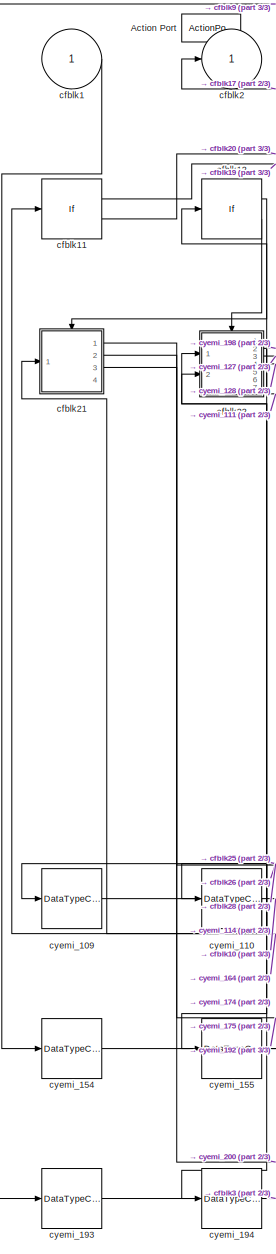
[diagram: cfblk59 - part 1/3, left side, full height]
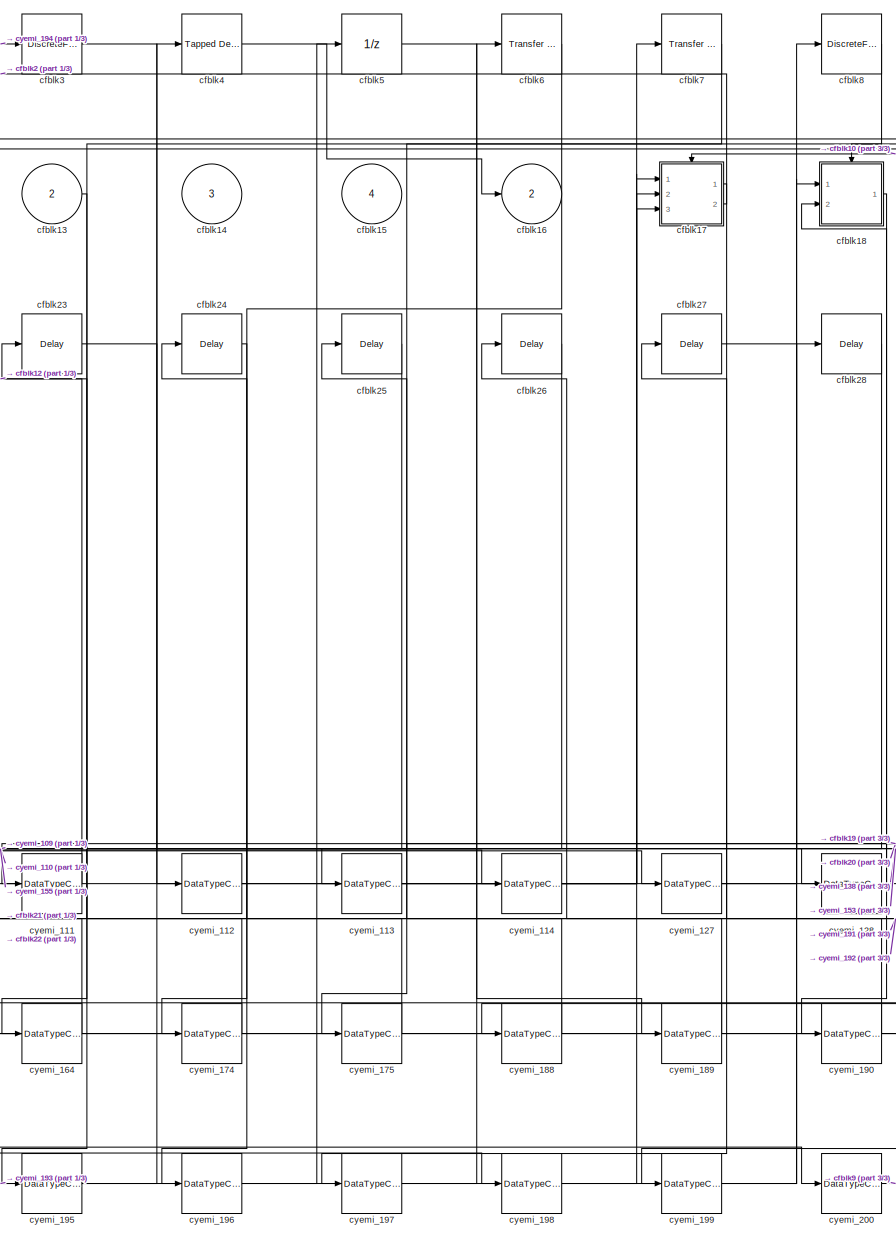
[diagram: cfblk59 - part 2/3, center side, full height]
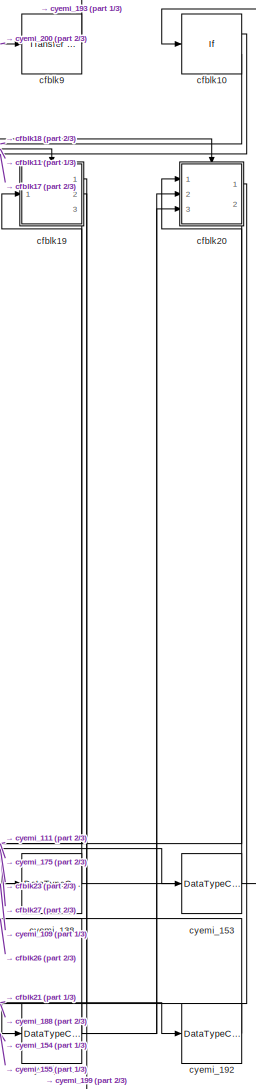
[diagram: cfblk59 - part 3/3, right side, full height]
BLOCK [SubSystem] cfblk59
  Ports = [4, 2, 0, 0, 0, 0, 0, 1]
  RequestExecContextInheritance = off
  TreatAsAtomicUnit = on
BLOCK [ActionPort] cfblk59/Action Port
  ActionType = then
BLOCK [Inport] cfblk59/cfblk1
  IconDisplay = Port number
BLOCK [If] cfblk59/cfblk10
  Ports = [1, 2]
  SampleTime = 1
BLOCK [If] cfblk59/cfblk11
  Ports = [1, 2]
  SampleTime = 1
BLOCK [If] cfblk59/cfblk12
  Ports = [1, 2]
  SampleTime = 1
BLOCK [Inport] cfblk59/cfblk13
  IconDisplay = Port number
  Port = 2
BLOCK [Inport] cfblk59/cfblk14
  IconDisplay = Port number
  Port = 3
BLOCK [Inport] cfblk59/cfblk15
  IconDisplay = Port number
  Port = 4
BLOCK [Outport] cfblk59/cfblk16
  IconDisplay = Port number
  Port = 2
BLOCK [SubSystem] cfblk59/cfblk17
  Ports = [3, 2, 0, 0, 0, 0, 0, 1]
  RequestExecContextInheritance = off
  TreatAsAtomicUnit = on
BLOCK [ActionPort] cfblk59/cfblk17/Action Port
  ActionType = then
BLOCK [Inport] cfblk59/cfblk17/cfblk1
  IconDisplay = Port number
BLOCK [Reference] cfblk59/cfblk17/cfblk10  REF=simulink/Discrete/Transfer Fcn
Real Zero
  Ports = [1, 1]
  SourceBlock = simulink/Discrete/Transfer Fcn\nReal Zero
  SourceProductBaseCode = SL
  SourceProductName = Simulink
  SourceType = Transfer Fcn Real Zero
BLOCK [Inport] cfblk59/cfblk17/cfblk11
  IconDisplay = Port number
  Port = 2
BLOCK [Inport] cfblk59/cfblk17/cfblk12
  IconDisplay = Port number
  Port = 3
BLOCK [Outport] cfblk59/cfblk17/cfblk13
  IconDisplay = Port number
  Port = 2
BLOCK [Delay] cfblk59/cfblk17/cfblk14
  InputPortMap = u0
  Ports = [1, 1]
BLOCK [Outport] cfblk59/cfblk17/cfblk2
  IconDisplay = Port number
BLOCK [DiscreteFir] cfblk59/cfblk17/cfblk3
  InputPortMap = u0
  OutputPortMap = o0
  Ports = [1, 1]
BLOCK [Reference] cfblk59/cfblk17/cfblk4  REF=simulink/Continuous/PID Controller
  Ports = [1, 1]
  SourceBlock = simulink/Continuous/PID Controller
  SourceProductBaseCode = SL
  SourceProductName = Simulink
  SourceType = PID 1dof
BLOCK [Delay] cfblk59/cfblk17/cfblk5
  DelayLengthSource = Input port
  InputPortMap = u0,p1
  Ports = [2, 1]
BLOCK [Delay] cfblk59/cfblk17/cfblk6
  InputPortMap = u0
  Ports = [1, 1]
BLOCK [Reference] cfblk59/cfblk17/cfblk7  REF=simulink/Discrete/Tapped Delay
  Ports = [1, 1]
  SourceBlock = simulink/Discrete/Tapped Delay
  SourceProductBaseCode = SL
  SourceProductName = Simulink
  SourceType = Tapped Delay Line
BLOCK [Delay] cfblk59/cfblk17/cfblk8
  InputPortMap = u0,e6
  Ports = [2, 1]
  ShowEnablePort = on
BLOCK [Delay] cfblk59/cfblk17/cfblk9
  InputPortMap = u0,e6
  Ports = [2, 1]
  ShowEnablePort = on
BLOCK [DataTypeConversion] cfblk59/cfblk17/cyemi_115
  OutDataTypeStr = double
  RndMeth = Floor
  SaturateOnIntegerOverflow = off
BLOCK [DataTypeConversion] cfblk59/cfblk17/cyemi_116
  OutDataTypeStr = double
  RndMeth = Floor
  SaturateOnIntegerOverflow = off
BLOCK [DataTypeConversion] cfblk59/cfblk17/cyemi_117
  OutDataTypeStr = double
  RndMeth = Floor
  SaturateOnIntegerOverflow = off
BLOCK [DataTypeConversion] cfblk59/cfblk17/cyemi_118
  OutDataTypeStr = double
  RndMeth = Floor
  SaturateOnIntegerOverflow = off
BLOCK [DataTypeConversion] cfblk59/cfblk17/cyemi_119
  OutDataTypeStr = double
  RndMeth = Floor
  SaturateOnIntegerOverflow = off
BLOCK [DataTypeConversion] cfblk59/cfblk17/cyemi_120
  OutDataTypeStr = double
  RndMeth = Floor
  SaturateOnIntegerOverflow = off
BLOCK [DataTypeConversion] cfblk59/cfblk17/cyemi_121
  OutDataTypeStr = double
  RndMeth = Floor
  SaturateOnIntegerOverflow = off
BLOCK [DataTypeConversion] cfblk59/cfblk17/cyemi_122
  OutDataTypeStr = double
  RndMeth = Floor
  SaturateOnIntegerOverflow = off
BLOCK [DataTypeConversion] cfblk59/cfblk17/cyemi_123
  OutDataTypeStr = double
  RndMeth = Floor
  SaturateOnIntegerOverflow = off
BLOCK [DataTypeConversion] cfblk59/cfblk17/cyemi_124
  OutDataTypeStr = double
  RndMeth = Floor
  SaturateOnIntegerOverflow = off
BLOCK [DataTypeConversion] cfblk59/cfblk17/cyemi_125
  OutDataTypeStr = double
  RndMeth = Floor
  SaturateOnIntegerOverflow = off
BLOCK [DataTypeConversion] cfblk59/cfblk17/cyemi_126
  OutDataTypeStr = double
  RndMeth = Floor
  SaturateOnIntegerOverflow = off
BLOCK [SubSystem] cfblk59/cfblk18
  Ports = [2, 1, 0, 0, 0, 0, 0, 1]
  RequestExecContextInheritance = off
  TreatAsAtomicUnit = on
BLOCK [ActionPort] cfblk59/cfblk18/Action Port
  ActionType = else
BLOCK [Inport] cfblk59/cfblk18/cfblk1
  IconDisplay = Port number
BLOCK [Inport] cfblk59/cfblk18/cfblk10
  IconDisplay = Port number
  Port = 2
BLOCK [Delay] cfblk59/cfblk18/cfblk11
  InputPortMap = u0
  Ports = [1, 1]
BLOCK [Outport] cfblk59/cfblk18/cfblk2
  IconDisplay = Port number
BLOCK [Delay] cfblk59/cfblk18/cfblk3
  DelayLengthSource = Input port
  InputPortMap = u0,p1
  Ports = [2, 1]
BLOCK [Reference] cfblk59/cfblk18/cfblk4  REF=simulink/Discrete/Transfer Fcn
Lead or Lag
  Ports = [1, 1]
  SourceBlock = simulink/Discrete/Transfer Fcn\nLead or Lag
  SourceProductBaseCode = SL
  SourceProductName = Simulink
  SourceType = Lead or Lag Compensator
BLOCK [DiscreteStateSpace] cfblk59/cfblk18/cfblk5
  SampleTime = -1
BLOCK [DiscreteFilter] cfblk59/cfblk18/cfblk6
  InputPortMap = u0
  Ports = [1, 1]
BLOCK [Reference] cfblk59/cfblk18/cfblk7  REF=simulink/Discrete/Transfer Fcn
Real Zero
  Ports = [1, 1]
  SourceBlock = simulink/Discrete/Transfer Fcn\nReal Zero
  SourceProductBaseCode = SL
  SourceProductName = Simulink
  SourceType = Transfer Fcn Real Zero
BLOCK [Reference] cfblk59/cfblk18/cfblk8  REF=simulink/Discrete/Transfer Fcn
First Order
  Ports = [1, 1]
  SourceBlock = simulink/Discrete/Transfer Fcn\nFirst Order
  SourceProductBaseCode = SL
  SourceProductName = Simulink
  SourceType = First Order Transfer Fcn
BLOCK [DiscreteFilter] cfblk59/cfblk18/cfblk9
  InputPortMap = u0
  Ports = [1, 1]
BLOCK [DataTypeConversion] cfblk59/cfblk18/cyemi_129
  OutDataTypeStr = double
  RndMeth = Floor
  SaturateOnIntegerOverflow = off
BLOCK [DataTypeConversion] cfblk59/cfblk18/cyemi_130
  OutDataTypeStr = double
  RndMeth = Floor
  SaturateOnIntegerOverflow = off
BLOCK [DataTypeConversion] cfblk59/cfblk18/cyemi_131
  OutDataTypeStr = double
  RndMeth = Floor
  SaturateOnIntegerOverflow = off
BLOCK [DataTypeConversion] cfblk59/cfblk18/cyemi_132
  OutDataTypeStr = double
  RndMeth = Floor
  SaturateOnIntegerOverflow = off
BLOCK [DataTypeConversion] cfblk59/cfblk18/cyemi_133
  OutDataTypeStr = double
  RndMeth = Floor
  SaturateOnIntegerOverflow = off
BLOCK [DataTypeConversion] cfblk59/cfblk18/cyemi_134
  OutDataTypeStr = double
  RndMeth = Floor
  SaturateOnIntegerOverflow = off
BLOCK [DataTypeConversion] cfblk59/cfblk18/cyemi_135
  OutDataTypeStr = double
  RndMeth = Floor
  SaturateOnIntegerOverflow = off
BLOCK [DataTypeConversion] cfblk59/cfblk18/cyemi_136
  OutDataTypeStr = double
  RndMeth = Floor
  SaturateOnIntegerOverflow = off
BLOCK [DataTypeConversion] cfblk59/cfblk18/cyemi_137
  OutDataTypeStr = double
  RndMeth = Floor
  SaturateOnIntegerOverflow = off
BLOCK [SubSystem] cfblk59/cfblk19
  Ports = [1, 3, 0, 0, 0, 0, 0, 1]
  RequestExecContextInheritance = off
  TreatAsAtomicUnit = on
BLOCK [ActionPort] cfblk59/cfblk19/Action Port
  ActionType = then
BLOCK [Inport] cfblk59/cfblk19/cfblk1
  IconDisplay = Port number
BLOCK [Reference] cfblk59/cfblk19/cfblk10  REF=simulink/Discrete/Transfer Fcn
Real Zero
  Ports = [1, 1]
  SourceBlock = simulink/Discrete/Transfer Fcn\nReal Zero
  SourceProductBaseCode = SL
  SourceProductName = Simulink
  SourceType = Transfer Fcn Real Zero
BLOCK [Reference] cfblk59/cfblk19/cfblk11  REF=simulink/Continuous/PID Controller
  Ports = [1, 1]
  SourceBlock = simulink/Continuous/PID Controller
  SourceProductBaseCode = SL
  SourceProductName = Simulink
  SourceType = PID 1dof
BLOCK [Reference] cfblk59/cfblk19/cfblk12  REF=simulink/Discrete/Transfer Fcn
Real Zero
  Ports = [1, 1]
  SourceBlock = simulink/Discrete/Transfer Fcn\nReal Zero
  SourceProductBaseCode = SL
  SourceProductName = Simulink
  SourceType = Transfer Fcn Real Zero
BLOCK [Outport] cfblk59/cfblk19/cfblk13
  IconDisplay = Port number
  Port = 2
BLOCK [Outport] cfblk59/cfblk19/cfblk14
  IconDisplay = Port number
  Port = 3
BLOCK [Delay] cfblk59/cfblk19/cfblk15
  InputPortMap = u0
  Ports = [1, 1]
BLOCK [Delay] cfblk59/cfblk19/cfblk16
  InputPortMap = u0
  Ports = [1, 1]
BLOCK [Outport] cfblk59/cfblk19/cfblk2
  IconDisplay = Port number
BLOCK [Delay] cfblk59/cfblk19/cfblk3
  InputPortMap = u0,e6
  Ports = [2, 1]
  ShowEnablePort = on
BLOCK [Reference] cfblk59/cfblk19/cfblk4  REF=simulink/Discrete/Tapped Delay
  Ports = [1, 1]
  SourceBlock = simulink/Discrete/Tapped Delay
  SourceProductBaseCode = SL
  SourceProductName = Simulink
  SourceType = Tapped Delay Line
BLOCK [DiscreteFir] cfblk59/cfblk19/cfblk5
  InputPortMap = u0
  OutputPortMap = o0
  Ports = [1, 1]
BLOCK [DiscreteFir] cfblk59/cfblk19/cfblk6
  InputPortMap = u0
  OutputPortMap = o0
  Ports = [1, 1]
BLOCK [Reference] cfblk59/cfblk19/cfblk7  REF=simulink/Discrete/Difference
  Ports = [1, 1]
  SourceBlock = simulink/Discrete/Difference
  SourceProductBaseCode = SL
  SourceProductName = Simulink
  SourceType = Difference
BLOCK [Delay] cfblk59/cfblk19/cfblk8
  InputPortMap = u0,e6
  Ports = [2, 1]
  ShowEnablePort = on
BLOCK [DiscreteStateSpace] cfblk59/cfblk19/cfblk9
  SampleTime = -1
BLOCK [DataTypeConversion] cfblk59/cfblk19/cyemi_139
  OutDataTypeStr = double
  RndMeth = Floor
  SaturateOnIntegerOverflow = off
BLOCK [DataTypeConversion] cfblk59/cfblk19/cyemi_140
  OutDataTypeStr = double
  RndMeth = Floor
  SaturateOnIntegerOverflow = off
BLOCK [DataTypeConversion] cfblk59/cfblk19/cyemi_141
  OutDataTypeStr = double
  RndMeth = Floor
  SaturateOnIntegerOverflow = off
BLOCK [DataTypeConversion] cfblk59/cfblk19/cyemi_142
  OutDataTypeStr = double
  RndMeth = Floor
  SaturateOnIntegerOverflow = off
BLOCK [DataTypeConversion] cfblk59/cfblk19/cyemi_143
  OutDataTypeStr = double
  RndMeth = Floor
  SaturateOnIntegerOverflow = off
BLOCK [DataTypeConversion] cfblk59/cfblk19/cyemi_144
  OutDataTypeStr = double
  RndMeth = Floor
  SaturateOnIntegerOverflow = off
BLOCK [DataTypeConversion] cfblk59/cfblk19/cyemi_145
  OutDataTypeStr = double
  RndMeth = Floor
  SaturateOnIntegerOverflow = off
BLOCK [DataTypeConversion] cfblk59/cfblk19/cyemi_146
  OutDataTypeStr = double
  RndMeth = Floor
  SaturateOnIntegerOverflow = off
BLOCK [DataTypeConversion] cfblk59/cfblk19/cyemi_147
  OutDataTypeStr = double
  RndMeth = Floor
  SaturateOnIntegerOverflow = off
BLOCK [DataTypeConversion] cfblk59/cfblk19/cyemi_148
  OutDataTypeStr = double
  RndMeth = Floor
  SaturateOnIntegerOverflow = off
BLOCK [DataTypeConversion] cfblk59/cfblk19/cyemi_149
  OutDataTypeStr = double
  RndMeth = Floor
  SaturateOnIntegerOverflow = off
BLOCK [DataTypeConversion] cfblk59/cfblk19/cyemi_150
  OutDataTypeStr = double
  RndMeth = Floor
  SaturateOnIntegerOverflow = off
BLOCK [DataTypeConversion] cfblk59/cfblk19/cyemi_151
  OutDataTypeStr = double
  RndMeth = Floor
  SaturateOnIntegerOverflow = off
BLOCK [DataTypeConversion] cfblk59/cfblk19/cyemi_152
  OutDataTypeStr = double
  RndMeth = Floor
  SaturateOnIntegerOverflow = off
BLOCK [Outport] cfblk59/cfblk2
  IconDisplay = Port number
BLOCK [SubSystem] cfblk59/cfblk20
  Ports = [3, 2, 0, 0, 0, 0, 0, 1]
  RequestExecContextInheritance = off
  TreatAsAtomicUnit = on
BLOCK [ActionPort] cfblk59/cfblk20/Action Port
  ActionType = else
BLOCK [Inport] cfblk59/cfblk20/cfblk1
  IconDisplay = Port number
BLOCK [Outport] cfblk59/cfblk20/cfblk10
  IconDisplay = Port number
  Port = 2
BLOCK [Delay] cfblk59/cfblk20/cfblk11
  InputPortMap = u0
  Ports = [1, 1]
BLOCK [Outport] cfblk59/cfblk20/cfblk2
  IconDisplay = Port number
BLOCK [Reference] cfblk59/cfblk20/cfblk3  REF=simulink/Continuous/PID Controller (2DOF)
  Ports = [2, 1]
  SourceBlock = simulink/Continuous/PID Controller (2DOF)
  SourceProductBaseCode = SL
  SourceProductName = Simulink
  SourceType = PID 2dof
BLOCK [Reference] cfblk59/cfblk20/cfblk4  REF=simulink/Continuous/PID Controller (2DOF)
  Ports = [2, 1]
  SourceBlock = simulink/Continuous/PID Controller (2DOF)
  SourceProductBaseCode = SL
  SourceProductName = Simulink
  SourceType = PID 2dof
BLOCK [Reference] cfblk59/cfblk20/cfblk5  REF=simulink/Discrete/Difference
  Ports = [1, 1]
  SourceBlock = simulink/Discrete/Difference
  SourceProductBaseCode = SL
  SourceProductName = Simulink
  SourceType = Difference
BLOCK [Reference] cfblk59/cfblk20/cfblk6  REF=simulink/Discrete/Transfer Fcn
Lead or Lag
  Ports = [1, 1]
  SourceBlock = simulink/Discrete/Transfer Fcn\nLead or Lag
  SourceProductBaseCode = SL
  SourceProductName = Simulink
  SourceType = Lead or Lag Compensator
BLOCK [Reference] cfblk59/cfblk20/cfblk7  REF=simulink/Discrete/Transfer Fcn
Real Zero
  Ports = [1, 1]
  SourceBlock = simulink/Discrete/Transfer Fcn\nReal Zero
  SourceProductBaseCode = SL
  SourceProductName = Simulink
  SourceType = Transfer Fcn Real Zero
BLOCK [Inport] cfblk59/cfblk20/cfblk8
  IconDisplay = Port number
  Port = 2
BLOCK [Inport] cfblk59/cfblk20/cfblk9
  IconDisplay = Port number
  Port = 3
BLOCK [DataTypeConversion] cfblk59/cfblk20/cyemi_156
  OutDataTypeStr = double
  RndMeth = Floor
  SaturateOnIntegerOverflow = off
BLOCK [DataTypeConversion] cfblk59/cfblk20/cyemi_157
  OutDataTypeStr = double
  RndMeth = Floor
  SaturateOnIntegerOverflow = off
BLOCK [DataTypeConversion] cfblk59/cfblk20/cyemi_158
  OutDataTypeStr = double
  RndMeth = Floor
  SaturateOnIntegerOverflow = off
BLOCK [DataTypeConversion] cfblk59/cfblk20/cyemi_159
  OutDataTypeStr = double
  RndMeth = Floor
  SaturateOnIntegerOverflow = off
BLOCK [DataTypeConversion] cfblk59/cfblk20/cyemi_160
  OutDataTypeStr = double
  RndMeth = Floor
  SaturateOnIntegerOverflow = off
BLOCK [DataTypeConversion] cfblk59/cfblk20/cyemi_161
  OutDataTypeStr = double
  RndMeth = Floor
  SaturateOnIntegerOverflow = off
BLOCK [DataTypeConversion] cfblk59/cfblk20/cyemi_162
  OutDataTypeStr = double
  RndMeth = Floor
  SaturateOnIntegerOverflow = off
BLOCK [DataTypeConversion] cfblk59/cfblk20/cyemi_163
  OutDataTypeStr = double
  RndMeth = Floor
  SaturateOnIntegerOverflow = off
BLOCK [SubSystem] cfblk59/cfblk21
  Ports = [1, 4, 0, 0, 0, 0, 0, 1]
  RequestExecContextInheritance = off
  TreatAsAtomicUnit = on
BLOCK [ActionPort] cfblk59/cfblk21/Action Port
  ActionType = then
BLOCK [Inport] cfblk59/cfblk21/cfblk1
  IconDisplay = Port number
BLOCK [DiscreteFir] cfblk59/cfblk21/cfblk10
  InputPortMap = u0
  OutputPortMap = o0
  Ports = [1, 1]
BLOCK [Reference] cfblk59/cfblk21/cfblk11  REF=simulink/Discrete/Transfer Fcn
Lead or Lag
  Ports = [1, 1]
  SourceBlock = simulink/Discrete/Transfer Fcn\nLead or Lag
  SourceProductBaseCode = SL
  SourceProductName = Simulink
  SourceType = Lead or Lag Compensator
BLOCK [Outport] cfblk59/cfblk21/cfblk12
  IconDisplay = Port number
  Port = 2
BLOCK [Outport] cfblk59/cfblk21/cfblk13
  IconDisplay = Port number
  Port = 3
BLOCK [Outport] cfblk59/cfblk21/cfblk14
  IconDisplay = Port number
  Port = 4
BLOCK [Outport] cfblk59/cfblk21/cfblk2
  IconDisplay = Port number
BLOCK [DiscreteIntegrator] cfblk59/cfblk21/cfblk3
  ICPrevOutput = DiscIntNeverNeededParam
  ICPrevScaledInput = DiscIntNeverNeededParam
  InitialConditionSetting = Auto
  OutDataTypeStr = double
  Ports = [1, 1]
  SampleTime = -1
BLOCK [Reference] cfblk59/cfblk21/cfblk4  REF=simulink/Discrete/Transfer Fcn
First Order
  Ports = [1, 1]
  SourceBlock = simulink/Discrete/Transfer Fcn\nFirst Order
  SourceProductBaseCode = SL
  SourceProductName = Simulink
  SourceType = First Order Transfer Fcn
BLOCK [DiscreteFilter] cfblk59/cfblk21/cfblk5
  InputPortMap = u0
  Ports = [1, 1]
BLOCK [Reference] cfblk59/cfblk21/cfblk6  REF=simulink/Discrete/Transfer Fcn
Real Zero
  Ports = [1, 1]
  SourceBlock = simulink/Discrete/Transfer Fcn\nReal Zero
  SourceProductBaseCode = SL
  SourceProductName = Simulink
  SourceType = Transfer Fcn Real Zero
BLOCK [UnitDelay] cfblk59/cfblk21/cfblk7
  InputProcessing = Elements as channels (sample based)
  SampleTime = -1
BLOCK [DiscreteFilter] cfblk59/cfblk21/cfblk8
  InputPortMap = u0
  Ports = [1, 1]
BLOCK [DiscreteFir] cfblk59/cfblk21/cfblk9
  InputPortMap = u0
  OutputPortMap = o0
  Ports = [1, 1]
BLOCK [DataTypeConversion] cfblk59/cfblk21/cyemi_165
  OutDataTypeStr = double
  RndMeth = Floor
  SaturateOnIntegerOverflow = off
BLOCK [DataTypeConversion] cfblk59/cfblk21/cyemi_166
  OutDataTypeStr = double
  RndMeth = Floor
  SaturateOnIntegerOverflow = off
BLOCK [DataTypeConversion] cfblk59/cfblk21/cyemi_167
  OutDataTypeStr = double
  RndMeth = Floor
  SaturateOnIntegerOverflow = off
BLOCK [DataTypeConversion] cfblk59/cfblk21/cyemi_168
  OutDataTypeStr = double
  RndMeth = Floor
  SaturateOnIntegerOverflow = off
BLOCK [DataTypeConversion] cfblk59/cfblk21/cyemi_169
  OutDataTypeStr = double
  RndMeth = Floor
  SaturateOnIntegerOverflow = off
BLOCK [DataTypeConversion] cfblk59/cfblk21/cyemi_170
  OutDataTypeStr = double
  RndMeth = Floor
  SaturateOnIntegerOverflow = off
BLOCK [DataTypeConversion] cfblk59/cfblk21/cyemi_171
  OutDataTypeStr = double
  RndMeth = Floor
  SaturateOnIntegerOverflow = off
BLOCK [DataTypeConversion] cfblk59/cfblk21/cyemi_172
  OutDataTypeStr = double
  RndMeth = Floor
  SaturateOnIntegerOverflow = off
BLOCK [DataTypeConversion] cfblk59/cfblk21/cyemi_173
  OutDataTypeStr = double
  RndMeth = Floor
  SaturateOnIntegerOverflow = off
BLOCK [SubSystem] cfblk59/cfblk22
  Ports = [2, 7, 0, 0, 0, 0, 0, 1]
  RequestExecContextInheritance = off
  TreatAsAtomicUnit = on
BLOCK [ActionPort] cfblk59/cfblk22/Action Port
  ActionType = else
BLOCK [Inport] cfblk59/cfblk22/cfblk1
  IconDisplay = Port number
BLOCK [Delay] cfblk59/cfblk22/cfblk10
  DelayLengthSource = Input port
  InputPortMap = u0,p1
  Ports = [2, 1]
BLOCK [Inport] cfblk59/cfblk22/cfblk11
  IconDisplay = Port number
  Port = 2
BLOCK [Outport] cfblk59/cfblk22/cfblk12
  IconDisplay = Port number
  Port = 2
BLOCK [Outport] cfblk59/cfblk22/cfblk13
  IconDisplay = Port number
  Port = 3
BLOCK [Outport] cfblk59/cfblk22/cfblk14
  IconDisplay = Port number
  Port = 4
BLOCK [Outport] cfblk59/cfblk22/cfblk15
  IconDisplay = Port number
  Port = 5
BLOCK [Outport] cfblk59/cfblk22/cfblk16
  IconDisplay = Port number
  Port = 6
BLOCK [Outport] cfblk59/cfblk22/cfblk17
  IconDisplay = Port number
  Port = 7
BLOCK [Delay] cfblk59/cfblk22/cfblk18
  InputPortMap = u0
  Ports = [1, 1]
BLOCK [Outport] cfblk59/cfblk22/cfblk2
  IconDisplay = Port number
BLOCK [Delay] cfblk59/cfblk22/cfblk3
  DelayLengthSource = Input port
  InputPortMap = u0,p1
  Ports = [2, 1]
BLOCK [DiscreteStateSpace] cfblk59/cfblk22/cfblk4
  SampleTime = -1
BLOCK [DiscreteIntegrator] cfblk59/cfblk22/cfblk5
  ICPrevOutput = DiscIntNeverNeededParam
  ICPrevScaledInput = DiscIntNeverNeededParam
  InitialConditionSetting = Auto
  OutDataTypeStr = double
  Ports = [1, 1]
  SampleTime = -1
BLOCK [Delay] cfblk59/cfblk22/cfblk6
  InputPortMap = u0,e6
  Ports = [2, 1]
  ShowEnablePort = on
BLOCK [DiscreteIntegrator] cfblk59/cfblk22/cfblk7
  ICPrevOutput = DiscIntNeverNeededParam
  ICPrevScaledInput = DiscIntNeverNeededParam
  InitialConditionSetting = Auto
  OutDataTypeStr = double
  Ports = [1, 1]
  SampleTime = -1
BLOCK [Reference] cfblk59/cfblk22/cfblk8  REF=simulink/Discrete/Transfer Fcn
Lead or Lag
  Ports = [1, 1]
  SourceBlock = simulink/Discrete/Transfer Fcn\nLead or Lag
  SourceProductBaseCode = SL
  SourceProductName = Simulink
  SourceType = Lead or Lag Compensator
BLOCK [DiscreteFir] cfblk59/cfblk22/cfblk9
  InputPortMap = u0
  OutputPortMap = o0
  Ports = [1, 1]
BLOCK [DataTypeConversion] cfblk59/cfblk22/cyemi_176
  OutDataTypeStr = double
  RndMeth = Floor
  SaturateOnIntegerOverflow = off
BLOCK [DataTypeConversion] cfblk59/cfblk22/cyemi_177
  OutDataTypeStr = double
  RndMeth = Floor
  SaturateOnIntegerOverflow = off
BLOCK [DataTypeConversion] cfblk59/cfblk22/cyemi_178
  OutDataTypeStr = double
  RndMeth = Floor
  SaturateOnIntegerOverflow = off
BLOCK [DataTypeConversion] cfblk59/cfblk22/cyemi_179
  OutDataTypeStr = double
  RndMeth = Floor
  SaturateOnIntegerOverflow = off
BLOCK [DataTypeConversion] cfblk59/cfblk22/cyemi_180
  OutDataTypeStr = double
  RndMeth = Floor
  SaturateOnIntegerOverflow = off
BLOCK [DataTypeConversion] cfblk59/cfblk22/cyemi_181
  OutDataTypeStr = double
  RndMeth = Floor
  SaturateOnIntegerOverflow = off
BLOCK [DataTypeConversion] cfblk59/cfblk22/cyemi_182
  OutDataTypeStr = double
  RndMeth = Floor
  SaturateOnIntegerOverflow = off
BLOCK [DataTypeConversion] cfblk59/cfblk22/cyemi_183
  OutDataTypeStr = double
  RndMeth = Floor
  SaturateOnIntegerOverflow = off
BLOCK [DataTypeConversion] cfblk59/cfblk22/cyemi_184
  OutDataTypeStr = double
  RndMeth = Floor
  SaturateOnIntegerOverflow = off
BLOCK [DataTypeConversion] cfblk59/cfblk22/cyemi_185
  OutDataTypeStr = double
  RndMeth = Floor
  SaturateOnIntegerOverflow = off
BLOCK [DataTypeConversion] cfblk59/cfblk22/cyemi_186
  OutDataTypeStr = double
  RndMeth = Floor
  SaturateOnIntegerOverflow = off
BLOCK [DataTypeConversion] cfblk59/cfblk22/cyemi_187
  OutDataTypeStr = double
  RndMeth = Floor
  SaturateOnIntegerOverflow = off
BLOCK [Delay] cfblk59/cfblk23
  InputPortMap = u0
  Ports = [1, 1]
BLOCK [Delay] cfblk59/cfblk24
  InputPortMap = u0
  Ports = [1, 1]
BLOCK [Delay] cfblk59/cfblk25
  InputPortMap = u0
  Ports = [1, 1]
BLOCK [Delay] cfblk59/cfblk26
  InputPortMap = u0
  Ports = [1, 1]
BLOCK [Delay] cfblk59/cfblk27
  InputPortMap = u0
  Ports = [1, 1]
BLOCK [Delay] cfblk59/cfblk28
  InputPortMap = u0
  Ports = [1, 1]
BLOCK [DiscreteFir] cfblk59/cfblk3
  InputPortMap = u0
  OutputPortMap = o0
  Ports = [1, 1]
BLOCK [Reference] cfblk59/cfblk4  REF=simulink/Discrete/Tapped Delay
  Ports = [1, 1]
  SourceBlock = simulink/Discrete/Tapped Delay
  SourceProductBaseCode = SL
  SourceProductName = Simulink
  SourceType = Tapped Delay Line
BLOCK [UnitDelay] cfblk59/cfblk5
  InputProcessing = Elements as channels (sample based)
  SampleTime = -1
BLOCK [Reference] cfblk59/cfblk6  REF=simulink/Discrete/Transfer Fcn
Lead or Lag
  Ports = [1, 1]
  SourceBlock = simulink/Discrete/Transfer Fcn\nLead or Lag
  SourceProductBaseCode = SL
  SourceProductName = Simulink
  SourceType = Lead or Lag Compensator
BLOCK [Reference] cfblk59/cfblk7  REF=simulink/Discrete/Transfer Fcn
First Order
  Ports = [1, 1]
  SourceBlock = simulink/Discrete/Transfer Fcn\nFirst Order
  SourceProductBaseCode = SL
  SourceProductName = Simulink
  SourceType = First Order Transfer Fcn
BLOCK [DiscreteFilter] cfblk59/cfblk8
  InputPortMap = u0
  Ports = [1, 1]
BLOCK [Reference] cfblk59/cfblk9  REF=simulink/Discrete/Transfer Fcn
Real Zero
  Ports = [1, 1]
  SourceBlock = simulink/Discrete/Transfer Fcn\nReal Zero
  SourceProductBaseCode = SL
  SourceProductName = Simulink
  SourceType = Transfer Fcn Real Zero
BLOCK [DataTypeConversion] cfblk59/cyemi_109
  OutDataTypeStr = double
  RndMeth = Floor
  SaturateOnIntegerOverflow = off
BLOCK [DataTypeConversion] cfblk59/cyemi_110
  OutDataTypeStr = double
  RndMeth = Floor
  SaturateOnIntegerOverflow = off
BLOCK [DataTypeConversion] cfblk59/cyemi_111
  OutDataTypeStr = double
  RndMeth = Floor
  SaturateOnIntegerOverflow = off
BLOCK [DataTypeConversion] cfblk59/cyemi_112
  OutDataTypeStr = double
  RndMeth = Floor
  SaturateOnIntegerOverflow = off
BLOCK [DataTypeConversion] cfblk59/cyemi_113
  OutDataTypeStr = double
  RndMeth = Floor
  SaturateOnIntegerOverflow = off
BLOCK [DataTypeConversion] cfblk59/cyemi_114
  OutDataTypeStr = double
  RndMeth = Floor
  SaturateOnIntegerOverflow = off
BLOCK [DataTypeConversion] cfblk59/cyemi_127
  OutDataTypeStr = double
  RndMeth = Floor
  SaturateOnIntegerOverflow = off
BLOCK [DataTypeConversion] cfblk59/cyemi_128
  OutDataTypeStr = double
  RndMeth = Floor
  SaturateOnIntegerOverflow = off
BLOCK [DataTypeConversion] cfblk59/cyemi_138
  OutDataTypeStr = double
  RndMeth = Floor
  SaturateOnIntegerOverflow = off
BLOCK [DataTypeConversion] cfblk59/cyemi_153
  OutDataTypeStr = double
  RndMeth = Floor
  SaturateOnIntegerOverflow = off
BLOCK [DataTypeConversion] cfblk59/cyemi_154
  OutDataTypeStr = double
  RndMeth = Floor
  SaturateOnIntegerOverflow = off
BLOCK [DataTypeConversion] cfblk59/cyemi_155
  OutDataTypeStr = double
  RndMeth = Floor
  SaturateOnIntegerOverflow = off
BLOCK [DataTypeConversion] cfblk59/cyemi_164
  OutDataTypeStr = double
  RndMeth = Floor
  SaturateOnIntegerOverflow = off
BLOCK [DataTypeConversion] cfblk59/cyemi_174
  OutDataTypeStr = double
  RndMeth = Floor
  SaturateOnIntegerOverflow = off
BLOCK [DataTypeConversion] cfblk59/cyemi_175
  OutDataTypeStr = double
  RndMeth = Floor
  SaturateOnIntegerOverflow = off
BLOCK [DataTypeConversion] cfblk59/cyemi_188
  OutDataTypeStr = double
  RndMeth = Floor
  SaturateOnIntegerOverflow = off
BLOCK [DataTypeConversion] cfblk59/cyemi_189
  OutDataTypeStr = double
  RndMeth = Floor
  SaturateOnIntegerOverflow = off
BLOCK [DataTypeConversion] cfblk59/cyemi_190
  OutDataTypeStr = double
  RndMeth = Floor
  SaturateOnIntegerOverflow = off
BLOCK [DataTypeConversion] cfblk59/cyemi_191
  OutDataTypeStr = double
  RndMeth = Floor
  SaturateOnIntegerOverflow = off
BLOCK [DataTypeConversion] cfblk59/cyemi_192
  OutDataTypeStr = double
  RndMeth = Floor
  SaturateOnIntegerOverflow = off
BLOCK [DataTypeConversion] cfblk59/cyemi_193
  OutDataTypeStr = double
  RndMeth = Floor
  SaturateOnIntegerOverflow = off
BLOCK [DataTypeConversion] cfblk59/cyemi_194
  OutDataTypeStr = double
  RndMeth = Floor
  SaturateOnIntegerOverflow = off
BLOCK [DataTypeConversion] cfblk59/cyemi_195
  OutDataTypeStr = double
  RndMeth = Floor
  SaturateOnIntegerOverflow = off
BLOCK [DataTypeConversion] cfblk59/cyemi_196
  OutDataTypeStr = double
  RndMeth = Floor
  SaturateOnIntegerOverflow = off
BLOCK [DataTypeConversion] cfblk59/cyemi_197
  OutDataTypeStr = double
  RndMeth = Floor
  SaturateOnIntegerOverflow = off
BLOCK [DataTypeConversion] cfblk59/cyemi_198
  OutDataTypeStr = double
  RndMeth = Floor
  SaturateOnIntegerOverflow = off
BLOCK [DataTypeConversion] cfblk59/cyemi_199
  OutDataTypeStr = double
  RndMeth = Floor
  SaturateOnIntegerOverflow = off
BLOCK [DataTypeConversion] cfblk59/cyemi_200
  OutDataTypeStr = double
  RndMeth = Floor
  SaturateOnIntegerOverflow = off
BLOCK [Delay] cfblk6
  DelayLengthSource = Input port
  InputPortMap = u0,p1
  Ports = [2, 1]
  SampleTime = 1
BLOCK [SubSystem] cfblk60
  Ports = [3, 4, 0, 0, 0, 0, 0, 1]
  RequestExecContextInheritance = off
  TreatAsAtomicUnit = on
BLOCK [ActionPort] cfblk60/Action Port
  ActionType = else
BLOCK [Inport] cfblk60/cfblk1
  IconDisplay = Port number
BLOCK [SubSystem] cfblk60/cfblk10
  Ports = [2, 1]
  RequestExecContextInheritance = off
  TreatAsAtomicUnit = on
BLOCK [ForEach] cfblk60/cfblk10/For Each
  DisableCoverage = on
  IndexMode = One-based
  Ports = []
BLOCK [Delay] cfblk60/cfblk10/cfblk10
  DelayLengthSource = Input port
  InputPortMap = u0,p1
  Ports = [2, 1]
BLOCK [Inport] cfblk60/cfblk10/emi_119
  IconDisplay = Port number
  Partition = on
  PartitionDimension = 1
  PartitionOffset = 0
  PartitionWidth = 1
BLOCK [Inport] cfblk60/cfblk10/emi_120
  IconDisplay = Port number
  Partition = on
  PartitionDimension = 1
  PartitionOffset = 0
  PartitionWidth = 1
  Port = 2
BLOCK [Outport] cfblk60/cfblk10/emi_121
  ConcatenationDimension = 1
  IconDisplay = Port number
BLOCK [DiscreteIntegrator] cfblk60/cfblk11
  ICPrevOutput = DiscIntNeverNeededParam
  ICPrevScaledInput = DiscIntNeverNeededParam
  InitialConditionSetting = Auto
  OutDataTypeStr = double
  Ports = [1, 1]
  SampleTime = -1
BLOCK [Inport] cfblk60/cfblk12
  IconDisplay = Port number
  Port = 2
BLOCK [Inport] cfblk60/cfblk13
  IconDisplay = Port number
  Port = 3
BLOCK [Outport] cfblk60/cfblk14
  IconDisplay = Port number
  Port = 2
BLOCK [Outport] cfblk60/cfblk15
  IconDisplay = Port number
  Port = 3
BLOCK [Outport] cfblk60/cfblk16
  IconDisplay = Port number
  Port = 4
BLOCK [Delay] cfblk60/cfblk17
  InputPortMap = u0
  Ports = [1, 1]
BLOCK [Outport] cfblk60/cfblk2
  IconDisplay = Port number
BLOCK [Delay] cfblk60/cfblk3
  InputPortMap = u0,e6
  Ports = [2, 1]
  ShowEnablePort = on
BLOCK [SubSystem] cfblk60/cfblk4
  Ports = [1, 1]
  RequestExecContextInheritance = off
  TreatAsAtomicUnit = on
BLOCK [ForEach] cfblk60/cfblk4/For Each
  DisableCoverage = on
  IndexMode = One-based
  Ports = []
BLOCK [SubSystem] cfblk60/cfblk4/cfblk4
  Ports = [1, 1]
  RequestExecContextInheritance = off
  TreatAsAtomicUnit = on
BLOCK [ForEach] cfblk60/cfblk4/cfblk4/For Each
  DisableCoverage = on
  IndexMode = One-based
  Ports = []
BLOCK [DiscreteZeroPole] cfblk60/cfblk4/cfblk4/cfblk4
  Gain = 1
  Poles = [0 0.5]
  SampleTime = -1
BLOCK [Inport] cfblk60/cfblk4/cfblk4/emi_51
  IconDisplay = Port number
  Partition = on
  PartitionDimension = 1
  PartitionOffset = 0
  PartitionWidth = 1
BLOCK [Outport] cfblk60/cfblk4/cfblk4/emi_52
  ConcatenationDimension = 1
  IconDisplay = Port number
BLOCK [Inport] cfblk60/cfblk4/emi_100
  IconDisplay = Port number
  Partition = on
  PartitionDimension = 1
  PartitionOffset = 0
  PartitionWidth = 1
BLOCK [Outport] cfblk60/cfblk4/emi_101
  ConcatenationDimension = 1
  IconDisplay = Port number
BLOCK [Delay] cfblk60/cfblk5
  InputPortMap = u0
  Ports = [1, 1]
BLOCK [Reference] cfblk60/cfblk6  REF=simulink/Continuous/PID Controller (2DOF)
  Ports = [2, 1]
  SourceBlock = simulink/Continuous/PID Controller (2DOF)
  SourceProductBaseCode = SL
  SourceProductName = Simulink
  SourceType = PID 2dof
BLOCK [SubSystem] cfblk60/cfblk7
  Ports = [1, 1]
  RequestExecContextInheritance = off
  TreatAsAtomicUnit = on
BLOCK [ForEach] cfblk60/cfblk7/For Each
  DisableCoverage = on
  IndexMode = One-based
  Ports = []
BLOCK [SubSystem] cfblk60/cfblk7/cfblk7
  Ports = [1, 1]
  RequestExecContextInheritance = off
  TreatAsAtomicUnit = on
BLOCK [ForEach] cfblk60/cfblk7/cfblk7/For Each
  DisableCoverage = on
  IndexMode = One-based
  Ports = []
BLOCK [Reference] cfblk60/cfblk7/cfblk7/cfblk7  REF=simulink/Discrete/Transfer Fcn
First Order
  Ports = [1, 1]
  SourceBlock = simulink/Discrete/Transfer Fcn\nFirst Order
  SourceProductBaseCode = SL
  SourceProductName = Simulink
  SourceType = First Order Transfer Fcn
BLOCK [Inport] cfblk60/cfblk7/cfblk7/emi_18
  IconDisplay = Port number
  Partition = on
  PartitionDimension = 1
  PartitionOffset = 0
  PartitionWidth = 1
BLOCK [Outport] cfblk60/cfblk7/cfblk7/emi_19
  ConcatenationDimension = 1
  IconDisplay = Port number
BLOCK [Inport] cfblk60/cfblk7/emi_127
  IconDisplay = Port number
  Partition = on
  PartitionDimension = 1
  PartitionOffset = 0
  PartitionWidth = 1
BLOCK [Outport] cfblk60/cfblk7/emi_128
  ConcatenationDimension = 1
  IconDisplay = Port number
BLOCK [DiscreteStateSpace] cfblk60/cfblk8
  SampleTime = -1
BLOCK [Reference] cfblk60/cfblk9  REF=simulink/Continuous/PID Controller
  Ports = [1, 1]
  SourceBlock = simulink/Continuous/PID Controller
  SourceProductBaseCode = SL
  SourceProductName = Simulink
  SourceType = PID 1dof
BLOCK [DataTypeConversion] cfblk60/cyemi_206
  OutDataTypeStr = double
  RndMeth = Floor
  SaturateOnIntegerOverflow = off
BLOCK [DataTypeConversion] cfblk60/cyemi_207
  OutDataTypeStr = double
  RndMeth = Floor
  SaturateOnIntegerOverflow = off
BLOCK [DataTypeConversion] cfblk60/cyemi_208
  OutDataTypeStr = double
  RndMeth = Floor
  SaturateOnIntegerOverflow = off
BLOCK [DataTypeConversion] cfblk60/cyemi_209
  OutDataTypeStr = double
  RndMeth = Floor
  SaturateOnIntegerOverflow = off
BLOCK [DataTypeConversion] cfblk60/cyemi_210
  OutDataTypeStr = double
  RndMeth = Floor
  SaturateOnIntegerOverflow = off
BLOCK [DataTypeConversion] cfblk60/cyemi_211
  OutDataTypeStr = double
  RndMeth = Floor
  SaturateOnIntegerOverflow = off
BLOCK [DataTypeConversion] cfblk60/cyemi_212
  OutDataTypeStr = double
  RndMeth = Floor
  SaturateOnIntegerOverflow = off
BLOCK [DataTypeConversion] cfblk60/cyemi_213
  OutDataTypeStr = double
  RndMeth = Floor
  SaturateOnIntegerOverflow = off
BLOCK [DataTypeConversion] cfblk60/cyemi_214
  OutDataTypeStr = double
  RndMeth = Floor
  SaturateOnIntegerOverflow = off
BLOCK [DataTypeConversion] cfblk60/cyemi_215
  OutDataTypeStr = double
  RndMeth = Floor
  SaturateOnIntegerOverflow = off
BLOCK [DataTypeConversion] cfblk60/cyemi_216
  OutDataTypeStr = double
  RndMeth = Floor
  SaturateOnIntegerOverflow = off
BLOCK [DataTypeConversion] cfblk60/cyemi_217
  OutDataTypeStr = double
  RndMeth = Floor
  SaturateOnIntegerOverflow = off
BLOCK [DataTypeConversion] cfblk60/cyemi_218
  OutDataTypeStr = double
  RndMeth = Floor
  SaturateOnIntegerOverflow = off
BLOCK [Delay] cfblk61
  InputPortMap = u0
  Ports = [1, 1]
  SampleTime = 1
BLOCK [Delay] cfblk62
  InputPortMap = u0
  Ports = [1, 1]
  SampleTime = 1
BLOCK [SubSystem] cfblk63
  Ports = [1, 1]
  RequestExecContextInheritance = off
  TreatAsAtomicUnit = on
BLOCK [ForEach] cfblk63/For Each
  DisableCoverage = on
  IndexMode = One-based
  Ports = []
BLOCK [Delay] cfblk63/cfblk63
  InputPortMap = u0
  Ports = [1, 1]
  SampleTime = 1
BLOCK [Inport] cfblk63/emi_6
  IconDisplay = Port number
  Partition = on
  PartitionDimension = 1
  PartitionOffset = 0
  PartitionWidth = 1
BLOCK [Outport] cfblk63/emi_7
  ConcatenationDimension = 1
  IconDisplay = Port number
BLOCK [Delay] cfblk64
  InputPortMap = u0
  Ports = [1, 1]
  SampleTime = 1
BLOCK [Delay] cfblk65
  InputPortMap = u0
  Ports = [1, 1]
  SampleTime = 1
BLOCK [Delay] cfblk66
  InputPortMap = u0
  Ports = [1, 1]
  SampleTime = 1
BLOCK [Delay] cfblk67
  InputPortMap = u0
  Ports = [1, 1]
  SampleTime = 1
BLOCK [Delay] cfblk68
  InputPortMap = u0
  Ports = [1, 1]
  SampleTime = 1
BLOCK [Delay] cfblk69
  InputPortMap = u0
  Ports = [1, 1]
  SampleTime = 1
BLOCK [SubSystem] cfblk7
  Ports = [1, 1]
  RequestExecContextInheritance = off
  TreatAsAtomicUnit = on
BLOCK [ForEach] cfblk7/For Each
  DisableCoverage = on
  IndexMode = One-based
  Ports = []
BLOCK [DiscreteStateSpace] cfblk7/cfblk7
BLOCK [Inport] cfblk7/emi_15
  IconDisplay = Port number
  Partition = on
  PartitionDimension = 1
  PartitionOffset = 0
  PartitionWidth = 1
BLOCK [Outport] cfblk7/emi_16
  ConcatenationDimension = 1
  IconDisplay = Port number
BLOCK [DataTypeConversion] cfblk70
  OutDataTypeStr = double
  RndMeth = Floor
  SaturateOnIntegerOverflow = off
BLOCK [DataTypeConversion] cfblk71
  OutDataTypeStr = double
  RndMeth = Floor
  SaturateOnIntegerOverflow = off
BLOCK [SubSystem] cfblk8
  Ports = [1, 1]
  RequestExecContextInheritance = off
  TreatAsAtomicUnit = on
BLOCK [ForEach] cfblk8/For Each
  DisableCoverage = on
  IndexMode = One-based
  Ports = []
BLOCK [UnitDelay] cfblk8/cfblk8
  InputProcessing = Elements as channels (sample based)
BLOCK [Inport] cfblk8/emi_85
  IconDisplay = Port number
  Partition = on
  PartitionDimension = 1
  PartitionOffset = 0
  PartitionWidth = 1
BLOCK [Outport] cfblk8/emi_86
  ConcatenationDimension = 1
  IconDisplay = Port number
BLOCK [SubSystem] cfblk9
  Ports = [1, 1]
  RequestExecContextInheritance = off
  TreatAsAtomicUnit = on
BLOCK [ForEach] cfblk9/For Each
  DisableCoverage = on
  IndexMode = One-based
  Ports = []
BLOCK [Reference] cfblk9/cfblk9  REF=simulink/Continuous/PID Controller
  Ports = [1, 1]
  SourceBlock = simulink/Continuous/PID Controller
  SourceProductBaseCode = SL
  SourceProductName = Simulink
  SourceType = PID 1dof
BLOCK [Inport] cfblk9/emi_107
  IconDisplay = Port number
  Partition = on
  PartitionDimension = 1
  PartitionOffset = 0
  PartitionWidth = 1
BLOCK [Outport] cfblk9/emi_108
  ConcatenationDimension = 1
  IconDisplay = Port number
BLOCK [DataTypeConversion] cyemi_0
  OutDataTypeStr = double
  RndMeth = Floor
  SaturateOnIntegerOverflow = off
BLOCK [DataTypeConversion] cyemi_1
  OutDataTypeStr = double
  RndMeth = Floor
  SaturateOnIntegerOverflow = off
BLOCK [DataTypeConversion] cyemi_10
  OutDataTypeStr = double
  RndMeth = Floor
  SaturateOnIntegerOverflow = off
BLOCK [DataTypeConversion] cyemi_105
  OutDataTypeStr = double
  RndMeth = Floor
  SaturateOnIntegerOverflow = off
BLOCK [DataTypeConversion] cyemi_106
  OutDataTypeStr = double
  RndMeth = Floor
  SaturateOnIntegerOverflow = off
BLOCK [DataTypeConversion] cyemi_107
  OutDataTypeStr = uint16
  RndMeth = Floor
  SaturateOnIntegerOverflow = off
BLOCK [DataTypeConversion] cyemi_108
  OutDataTypeStr = double
  RndMeth = Floor
  SaturateOnIntegerOverflow = off
BLOCK [DataTypeConversion] cyemi_11
  OutDataTypeStr = double
  RndMeth = Floor
  SaturateOnIntegerOverflow = off
BLOCK [DataTypeConversion] cyemi_12
  OutDataTypeStr = double
  RndMeth = Floor
  SaturateOnIntegerOverflow = off
BLOCK [DataTypeConversion] cyemi_13
  OutDataTypeStr = double
  RndMeth = Floor
  SaturateOnIntegerOverflow = off
BLOCK [DataTypeConversion] cyemi_14
  OutDataTypeStr = double
  RndMeth = Floor
  SaturateOnIntegerOverflow = off
BLOCK [DataTypeConversion] cyemi_15
  OutDataTypeStr = double
  RndMeth = Floor
  SaturateOnIntegerOverflow = off
BLOCK [DataTypeConversion] cyemi_16
  OutDataTypeStr = double
  RndMeth = Floor
  SaturateOnIntegerOverflow = off
BLOCK [DataTypeConversion] cyemi_17
  OutDataTypeStr = double
  RndMeth = Floor
  SaturateOnIntegerOverflow = off
BLOCK [DataTypeConversion] cyemi_18
  OutDataTypeStr = double
  RndMeth = Floor
  SaturateOnIntegerOverflow = off
BLOCK [DataTypeConversion] cyemi_19
  OutDataTypeStr = double
  RndMeth = Floor
  SaturateOnIntegerOverflow = off
BLOCK [DataTypeConversion] cyemi_2
  OutDataTypeStr = double
  RndMeth = Floor
  SaturateOnIntegerOverflow = off
BLOCK [DataTypeConversion] cyemi_20
  OutDataTypeStr = double
  RndMeth = Floor
  SaturateOnIntegerOverflow = off
BLOCK [DataTypeConversion] cyemi_201
  OutDataTypeStr = double
  RndMeth = Floor
  SaturateOnIntegerOverflow = off
BLOCK [DataTypeConversion] cyemi_202
  OutDataTypeStr = double
  RndMeth = Floor
  SaturateOnIntegerOverflow = off
BLOCK [DataTypeConversion] cyemi_203
  OutDataTypeStr = double
  RndMeth = Floor
  SaturateOnIntegerOverflow = off
BLOCK [DataTypeConversion] cyemi_204
  OutDataTypeStr = double
  RndMeth = Floor
  SaturateOnIntegerOverflow = off
BLOCK [DataTypeConversion] cyemi_205
  OutDataTypeStr = double
  RndMeth = Floor
  SaturateOnIntegerOverflow = off
BLOCK [DataTypeConversion] cyemi_21
  OutDataTypeStr = double
  RndMeth = Floor
  SaturateOnIntegerOverflow = off
BLOCK [DataTypeConversion] cyemi_219
  OutDataTypeStr = double
  RndMeth = Floor
  SaturateOnIntegerOverflow = off
BLOCK [DataTypeConversion] cyemi_22
  OutDataTypeStr = double
  RndMeth = Floor
  SaturateOnIntegerOverflow = off
BLOCK [DataTypeConversion] cyemi_220
  OutDataTypeStr = double
  RndMeth = Floor
  SaturateOnIntegerOverflow = off
BLOCK [DataTypeConversion] cyemi_221
  OutDataTypeStr = double
  RndMeth = Floor
  SaturateOnIntegerOverflow = off
BLOCK [DataTypeConversion] cyemi_222
  OutDataTypeStr = double
  RndMeth = Floor
  SaturateOnIntegerOverflow = off
BLOCK [DataTypeConversion] cyemi_223
  OutDataTypeStr = double
  RndMeth = Floor
  SaturateOnIntegerOverflow = off
BLOCK [DataTypeConversion] cyemi_224
  OutDataTypeStr = double
  RndMeth = Floor
  SaturateOnIntegerOverflow = off
BLOCK [DataTypeConversion] cyemi_225
  OutDataTypeStr = double
  RndMeth = Floor
  SaturateOnIntegerOverflow = off
BLOCK [DataTypeConversion] cyemi_226
  OutDataTypeStr = double
  RndMeth = Floor
  SaturateOnIntegerOverflow = off
BLOCK [DataTypeConversion] cyemi_227
  OutDataTypeStr = double
  RndMeth = Floor
  SaturateOnIntegerOverflow = off
BLOCK [DataTypeConversion] cyemi_228
  OutDataTypeStr = double
  RndMeth = Floor
  SaturateOnIntegerOverflow = off
BLOCK [DataTypeConversion] cyemi_229
  OutDataTypeStr = double
  RndMeth = Floor
  SaturateOnIntegerOverflow = off
BLOCK [DataTypeConversion] cyemi_23
  OutDataTypeStr = double
  RndMeth = Floor
  SaturateOnIntegerOverflow = off
BLOCK [DataTypeConversion] cyemi_230
  OutDataTypeStr = uint16
  RndMeth = Floor
  SaturateOnIntegerOverflow = off
BLOCK [DataTypeConversion] cyemi_231
  OutDataTypeStr = double
  RndMeth = Floor
  SaturateOnIntegerOverflow = off
BLOCK [DataTypeConversion] cyemi_232
  OutDataTypeStr = double
  RndMeth = Floor
  SaturateOnIntegerOverflow = off
BLOCK [DataTypeConversion] cyemi_24
  OutDataTypeStr = double
  RndMeth = Floor
  SaturateOnIntegerOverflow = off
BLOCK [DataTypeConversion] cyemi_25
  OutDataTypeStr = double
  RndMeth = Floor
  SaturateOnIntegerOverflow = off
BLOCK [DataTypeConversion] cyemi_26
  OutDataTypeStr = double
  RndMeth = Floor
  SaturateOnIntegerOverflow = off
BLOCK [DataTypeConversion] cyemi_27
  OutDataTypeStr = double
  RndMeth = Floor
  SaturateOnIntegerOverflow = off
BLOCK [DataTypeConversion] cyemi_28
  OutDataTypeStr = double
  RndMeth = Floor
  SaturateOnIntegerOverflow = off
BLOCK [DataTypeConversion] cyemi_29
  OutDataTypeStr = double
  RndMeth = Floor
  SaturateOnIntegerOverflow = off
BLOCK [DataTypeConversion] cyemi_3
  OutDataTypeStr = double
  RndMeth = Floor
  SaturateOnIntegerOverflow = off
BLOCK [DataTypeConversion] cyemi_30
  OutDataTypeStr = double
  RndMeth = Floor
  SaturateOnIntegerOverflow = off
BLOCK [DataTypeConversion] cyemi_31
  OutDataTypeStr = double
  RndMeth = Floor
  SaturateOnIntegerOverflow = off
BLOCK [DataTypeConversion] cyemi_32
  OutDataTypeStr = double
  RndMeth = Floor
  SaturateOnIntegerOverflow = off
BLOCK [DataTypeConversion] cyemi_33
  OutDataTypeStr = double
  RndMeth = Floor
  SaturateOnIntegerOverflow = off
BLOCK [DataTypeConversion] cyemi_34
  OutDataTypeStr = double
  RndMeth = Floor
  SaturateOnIntegerOverflow = off
BLOCK [DataTypeConversion] cyemi_35
  OutDataTypeStr = double
  RndMeth = Floor
  SaturateOnIntegerOverflow = off
BLOCK [DataTypeConversion] cyemi_4
  OutDataTypeStr = double
  RndMeth = Floor
  SaturateOnIntegerOverflow = off
BLOCK [DataTypeConversion] cyemi_5
  OutDataTypeStr = double
  RndMeth = Floor
  SaturateOnIntegerOverflow = off
BLOCK [DataTypeConversion] cyemi_6
  OutDataTypeStr = double
  RndMeth = Floor
  SaturateOnIntegerOverflow = off
BLOCK [DataTypeConversion] cyemi_7
  OutDataTypeStr = double
  RndMeth = Floor
  SaturateOnIntegerOverflow = off
BLOCK [DataTypeConversion] cyemi_71
  OutDataTypeStr = double
  RndMeth = Floor
  SaturateOnIntegerOverflow = off
BLOCK [DataTypeConversion] cyemi_72
  OutDataTypeStr = double
  RndMeth = Floor
  SaturateOnIntegerOverflow = off
BLOCK [DataTypeConversion] cyemi_79
  OutDataTypeStr = double
  RndMeth = Floor
  SaturateOnIntegerOverflow = off
BLOCK [DataTypeConversion] cyemi_8
  OutDataTypeStr = double
  RndMeth = Floor
  SaturateOnIntegerOverflow = off
BLOCK [DataTypeConversion] cyemi_89
  OutDataTypeStr = double
  RndMeth = Floor
  SaturateOnIntegerOverflow = off
BLOCK [DataTypeConversion] cyemi_9
  OutDataTypeStr = double
  RndMeth = Floor
  SaturateOnIntegerOverflow = off
BLOCK [DataTypeConversion] cyemi_90
  OutDataTypeStr = double
  RndMeth = Floor
  SaturateOnIntegerOverflow = off
BLOCK [DataTypeConversion] cyemi_91
  OutDataTypeStr = double
  RndMeth = Floor
  SaturateOnIntegerOverflow = off
LINE cfblk1/cfblk1:1 -> cfblk1/emi_115:1
LINE cfblk1/emi_113:1 -> cfblk1/cfblk1:1
LINE cfblk1/emi_114:1 -> cfblk1/cfblk1:2
LINE cfblk10/cfblk10:1 -> cfblk10/emi_83:1
LINE cfblk10/emi_82:1 -> cfblk10/cfblk10:1
LINE cfblk10:1 -> cyemi_219:1
LINE cfblk11:1 -> cfblk38:1
LINE cfblk12/cfblk12:1 -> cfblk12/emi_40:1
LINE cfblk12/emi_39:1 -> cfblk12/cfblk12:1
LINE cfblk12:1 -> cyemi_15:1
LINE cfblk13:1 -> cyemi_16:1
LINE cfblk14:1 -> cyemi_10:1
LINE cfblk15:1 -> cyemi_232:1
LINE cfblk16:1 -> cfblk33:1
LINE cfblk17/cfblk17:1 -> cfblk17/emi_31:1
LINE cfblk17/emi_30:1 -> cfblk17/cfblk17:1
NET cfblk17:1 -> cfblk34:1, cyemi_22:1
LINE cfblk18:1 -> cyemi_71:1
LINE cfblk19/cfblk19:1 -> cfblk19/emi_10:1
LINE cfblk19/emi_9:1 -> cfblk19/cfblk19:1
LINE cfblk19:1 -> cyemi_201:1
LINE cfblk1:1 -> cyemi_72:1
LINE cfblk2/cfblk2:1 -> cfblk2/emi_105:1
LINE cfblk2/emi_103:1 -> cfblk2/cfblk2:1
LINE cfblk2/emi_104:1 -> cfblk2/cfblk2:2
LINE cfblk20/cfblk20/cfblk20:1 -> cfblk20/cfblk20/emi_34:1
LINE cfblk20/cfblk20/emi_33:1 -> cfblk20/cfblk20/cfblk20:1
LINE cfblk20/cfblk20:1 -> cfblk20/emi_68:1
LINE cfblk20/emi_67:1 -> cfblk20/cfblk20:1
LINE cfblk20:1 -> cyemi_227:1
LINE cfblk21:1 -> cyemi_225:1
LINE cfblk22/cfblk22:1 -> cfblk22/emi_55:1
LINE cfblk22/emi_54:1 -> cfblk22/cfblk22:1
NET cfblk22:1 -> cfblk34:2, cyemi_224:1
LINE cfblk23/cfblk23/cfblk23:1 -> cfblk23/cfblk23/emi_62:1
LINE cfblk23/cfblk23/emi_60:1 -> cfblk23/cfblk23/cfblk23:1
LINE cfblk23/cfblk23/emi_61:1 -> cfblk23/cfblk23/cfblk23:2
LINE cfblk23/cfblk23:1 -> cfblk23/emi_75:1
LINE cfblk23/emi_73:1 -> cfblk23/cfblk23:1
LINE cfblk23/emi_74:1 -> cfblk23/cfblk23:2
LINE cfblk23:1 -> cyemi_220:1
NET cfblk24:1 -> cfblk41:1, cyemi_32:1, cyemi_91:1
LINE cfblk25:1 -> cyemi_223:1
LINE cfblk26:1 -> cyemi_229:1
LINE cfblk27:1 -> cyemi_89:1
LINE cfblk28/cfblk28:1 -> cfblk28/emi_65:1
LINE cfblk28/emi_64:1 -> cfblk28/cfblk28:1
LINE cfblk28:1 -> cyemi_3:1
LINE cfblk29/cfblk29:1 -> cfblk29/emi_49:1
LINE cfblk29/emi_47:1 -> cfblk29/cfblk29:1
LINE cfblk29/emi_48:1 -> cfblk29/cfblk29:2
LINE cfblk29:1 -> cyemi_203:1
LINE cfblk2:1 -> cyemi_222:1
LINE cfblk3:1 -> cyemi_231:1
LINE cfblk43/cfblk43:1 -> cfblk43/emi_125:1
LINE cfblk43:1 -> cyemi_228:1
LINE cfblk44/cfblk44:1 -> cfblk44/emi_77:1
LINE cfblk44:1 -> cyemi_6:1
LINE cfblk45/cfblk45:1 -> cfblk45/emi_91:1
NET cfblk45:1 -> cyemi_23:1, cyemi_30:1
LINE cfblk46/cfblk46:1 -> cfblk46/emi_45:1
LINE cfblk46:1 -> cyemi_28:1
NET cfblk47:1 -> cfblk39:2, cyemi_13:1
LINE cfblk48/cfblk48:1 -> cfblk48/emi_123:1
NET cfblk48:1 -> cyemi_202:1, cyemi_27:1
LINE cfblk49/cfblk49/cfblk49:1 -> cfblk49/cfblk49/emi_4:1
LINE cfblk49/cfblk49:1 -> cfblk49/emi_117:1
NET cfblk49:1 -> cyemi_107:1, cyemi_230:1
LINE cfblk4:1 -> cyemi_4:1
LINE cfblk5/cfblk5:1 -> cfblk5/emi_80:1
LINE cfblk5/emi_79:1 -> cfblk5/cfblk5:1
LINE cfblk50:1 -> cyemi_19:1
LINE cfblk51:1 -> cyemi_24:1
LINE cfblk52:1 -> cfblk55:ifaction
LINE cfblk52:2 -> cfblk56:ifaction
LINE cfblk53:1 -> cfblk57:ifaction
LINE cfblk53:2 -> cfblk58:ifaction
LINE cfblk54:1 -> cfblk59:ifaction
LINE cfblk54:2 -> cfblk60:ifaction
LINE cfblk55/cfblk10:1 -> cfblk55/cfblk2:1
LINE cfblk55/cfblk11:1 -> cfblk55/cfblk16:ifaction
LINE cfblk55/cfblk11:2 -> cfblk55/cfblk17:ifaction
LINE cfblk55/cfblk12:1 -> cfblk55/cyemi_67:1
LINE cfblk55/cfblk16/cfblk10:1 -> cfblk55/cfblk16/cyemi_42:1
LINE cfblk55/cfblk16/cfblk11:1 -> cfblk55/cfblk16/cyemi_47:1
LINE cfblk55/cfblk16/cfblk1:1 -> cfblk55/cfblk16/cyemi_46:1
LINE cfblk55/cfblk16/cfblk3:1 -> cfblk55/cfblk16/cyemi_48:1
LINE cfblk55/cfblk16/cfblk4:1 -> cfblk55/cfblk16/cfblk2:1
LINE cfblk55/cfblk16/cfblk5:1 -> cfblk55/cfblk16/cyemi_43:1
LINE cfblk55/cfblk16/cfblk6:1 -> cfblk55/cfblk16/cfblk12:1
LINE cfblk55/cfblk16/cfblk7:1 -> cfblk55/cfblk16/cyemi_45:1
LINE cfblk55/cfblk16/cfblk9:1 -> cfblk55/cfblk16/cyemi_44:1
LINE cfblk55/cfblk16/cyemi_42:1 -> cfblk55/cfblk16/cfblk3:1
LINE cfblk55/cfblk16/cyemi_43:1 -> cfblk55/cfblk16/cfblk4:1
LINE cfblk55/cfblk16/cyemi_44:1 -> cfblk55/cfblk16/cfblk5:1
LINE cfblk55/cfblk16/cyemi_45:1 -> cfblk55/cfblk16/cfblk6:1
LINE cfblk55/cfblk16/cyemi_46:1 -> cfblk55/cfblk16/cfblk7:1
LINE cfblk55/cfblk16/cyemi_47:1 -> cfblk55/cfblk16/cfblk7:2
LINE cfblk55/cfblk16/cyemi_48:1 -> cfblk55/cfblk16/cfblk8:1
LINE cfblk55/cfblk16:1 -> cfblk55/cyemi_66:1
NET cfblk55/cfblk16:2 -> cfblk55/cfblk15:1, cfblk55/cyemi_59:1
LINE cfblk55/cfblk17/cfblk12:1 -> cfblk55/cfblk17/cyemi_54:1
NET cfblk55/cfblk17/cfblk1:1 -> cfblk55/cfblk17/cyemi_51:1, cfblk55/cfblk17/cyemi_56:1
LINE cfblk55/cfblk17/cfblk3:1 -> cfblk55/cfblk17/cyemi_53:1
LINE cfblk55/cfblk17/cfblk4:1 -> cfblk55/cfblk17/cfblk2:1
LINE cfblk55/cfblk17/cfblk5:1 -> cfblk55/cfblk17/cyemi_57:1
LINE cfblk55/cfblk17/cfblk6:1 -> cfblk55/cfblk17/cyemi_58:1
NET cfblk55/cfblk17/cfblk7:1 -> cfblk55/cfblk17/cyemi_52:1, cfblk55/cfblk17/cyemi_55:1
LINE cfblk55/cfblk17/cfblk8:1 -> cfblk55/cfblk17/cfblk10:1
NET cfblk55/cfblk17/cfblk9:1 -> cfblk55/cfblk17/cfblk11:1, cfblk55/cfblk17/cyemi_50:1
LINE cfblk55/cfblk17/cyemi_50:1 -> cfblk55/cfblk17/cfblk12:1
LINE cfblk55/cfblk17/cyemi_51:1 -> cfblk55/cfblk17/cfblk3:1
LINE cfblk55/cfblk17/cyemi_52:1 -> cfblk55/cfblk17/cfblk4:1
LINE cfblk55/cfblk17/cyemi_53:1 -> cfblk55/cfblk17/cfblk5:1
LINE cfblk55/cfblk17/cyemi_54:1 -> cfblk55/cfblk17/cfblk6:1
LINE cfblk55/cfblk17/cyemi_55:1 -> cfblk55/cfblk17/cfblk6:2
LINE cfblk55/cfblk17/cyemi_56:1 -> cfblk55/cfblk17/cfblk7:1
LINE cfblk55/cfblk17/cyemi_57:1 -> cfblk55/cfblk17/cfblk8:1
LINE cfblk55/cfblk17/cyemi_58:1 -> cfblk55/cfblk17/cfblk9:1
LINE cfblk55/cfblk17:1 -> cfblk55/cyemi_68:1
LINE cfblk55/cfblk17:2 -> cfblk55/cyemi_39:1
NET cfblk55/cfblk17:3 -> cfblk55/cyemi_40:1, cfblk55/cyemi_69:1
LINE cfblk55/cfblk18:1 -> cfblk55/cyemi_64:1
LINE cfblk55/cfblk19:1 -> cfblk55/cyemi_38:1
LINE cfblk55/cfblk1:1 -> cfblk55/cfblk13:1
LINE cfblk55/cfblk20:1 -> cfblk55/cyemi_41:1
LINE cfblk55/cfblk21:1 -> cfblk55/cyemi_65:1
LINE cfblk55/cfblk3:1 -> cfblk55/cyemi_70:1
LINE cfblk55/cfblk4:1 -> cfblk55/cyemi_49:1
LINE cfblk55/cfblk5:1 -> cfblk55/cyemi_63:1
LINE cfblk55/cfblk6:1 -> cfblk55/cyemi_37:1
LINE cfblk55/cfblk7:1 -> cfblk55/cyemi_36:1
NET cfblk55/cfblk8:1 -> cfblk55/cyemi_60:1, cfblk55/cyemi_61:1, cfblk55/cyemi_62:1
LINE cfblk55/cfblk9:1 -> cfblk55/cfblk14:1
LINE cfblk55/cyemi_36:1 -> cfblk55/cfblk10:1
LINE cfblk55/cyemi_37:1 -> cfblk55/cfblk11:1
LINE cfblk55/cyemi_38:1 -> cfblk55/cfblk16:1
LINE cfblk55/cyemi_39:1 -> cfblk55/cfblk16:2
LINE cfblk55/cyemi_40:1 -> cfblk55/cfblk16:3
LINE cfblk55/cyemi_41:1 -> cfblk55/cfblk16:4
LINE cfblk55/cyemi_49:1 -> cfblk55/cfblk17:1
LINE cfblk55/cyemi_59:1 -> cfblk55/cfblk18:1
LINE cfblk55/cyemi_60:1 -> cfblk55/cfblk19:1
LINE cfblk55/cyemi_61:1 -> cfblk55/cfblk20:1
LINE cfblk55/cyemi_62:1 -> cfblk55/cfblk21:1
LINE cfblk55/cyemi_63:1 -> cfblk55/cfblk3:1
LINE cfblk55/cyemi_64:1 -> cfblk55/cfblk4:1
LINE cfblk55/cyemi_65:1 -> cfblk55/cfblk4:2
LINE cfblk55/cyemi_66:1 -> cfblk55/cfblk5:1
LINE cfblk55/cyemi_67:1 -> cfblk55/cfblk6:1
LINE cfblk55/cyemi_68:1 -> cfblk55/cfblk7:1
LINE cfblk55/cyemi_69:1 -> cfblk55/cfblk8:1
LINE cfblk55/cyemi_70:1 -> cfblk55/cfblk9:1
LINE cfblk55:1 -> cyemi_79:1
LINE cfblk55:2 -> cfblk32:1
LINE cfblk55:3 -> cyemi_14:1
LINE cfblk55:4 -> cyemi_8:1
LINE cfblk56/cfblk1:1 -> cfblk56/cyemi_75:1
LINE cfblk56/cfblk3/cfblk3:1 -> cfblk56/cfblk3/emi_111:1
LINE cfblk56/cfblk3/emi_110:1 -> cfblk56/cfblk3/cfblk3:1
LINE cfblk56/cfblk3:1 -> cfblk56/cyemi_76:1
LINE cfblk56/cfblk4:1 -> cfblk56/cyemi_77:1
LINE cfblk56/cfblk5/cfblk5:1 -> cfblk56/cfblk5/emi_22:1
LINE cfblk56/cfblk5/emi_21:1 -> cfblk56/cfblk5/cfblk5:1
LINE cfblk56/cfblk5:1 -> cfblk56/cyemi_78:1
LINE cfblk56/cfblk6/cfblk6:1 -> cfblk56/cfblk6/emi_2:1
LINE cfblk56/cfblk6/emi_1:1 -> cfblk56/cfblk6/cfblk6:1
LINE cfblk56/cfblk6:1 -> cfblk56/cfblk2:1
LINE cfblk56/cfblk7:1 -> cfblk56/cyemi_74:1
LINE cfblk56/cfblk8:1 -> cfblk56/cyemi_73:1
LINE cfblk56/cyemi_73:1 -> cfblk56/cfblk3:1
LINE cfblk56/cyemi_74:1 -> cfblk56/cfblk4:1
LINE cfblk56/cyemi_75:1 -> cfblk56/cfblk4:2
LINE cfblk56/cyemi_76:1 -> cfblk56/cfblk5:1
LINE cfblk56/cyemi_77:1 -> cfblk56/cfblk6:1
LINE cfblk56/cyemi_78:1 -> cfblk56/cfblk8:1
NET cfblk56:1 -> cyemi_204:1, cyemi_9:1
LINE cfblk57/cfblk10/cfblk10:1 -> cfblk57/cfblk10/emi_58:1
LINE cfblk57/cfblk10/emi_57:1 -> cfblk57/cfblk10/cfblk10:1
LINE cfblk57/cfblk10:1 -> cfblk57/cyemi_84:1
LINE cfblk57/cfblk1:1 -> cfblk57/cyemi_87:1
LINE cfblk57/cfblk3:1 -> cfblk57/cyemi_86:1
LINE cfblk57/cfblk4:1 -> cfblk57/cyemi_85:1
LINE cfblk57/cfblk5:1 -> cfblk57/cyemi_81:1
LINE cfblk57/cfblk6/cfblk6:1 -> cfblk57/cfblk6/emi_25:1
LINE cfblk57/cfblk6/emi_24:1 -> cfblk57/cfblk6/cfblk6:1
LINE cfblk57/cfblk6:1 -> cfblk57/cyemi_88:1
LINE cfblk57/cfblk7/cfblk7:1 -> cfblk57/cfblk7/emi_98:1
LINE cfblk57/cfblk7/emi_97:1 -> cfblk57/cfblk7/cfblk7:1
NET cfblk57/cfblk7:1 -> cfblk57/cfblk2:1, cfblk57/cyemi_80:1
LINE cfblk57/cfblk8:1 -> cfblk57/cyemi_82:1
LINE cfblk57/cfblk9/cfblk9:1 -> cfblk57/cfblk9/emi_43:1
LINE cfblk57/cfblk9/emi_42:1 -> cfblk57/cfblk9/cfblk9:1
LINE cfblk57/cfblk9:1 -> cfblk57/cyemi_83:1
LINE cfblk57/cyemi_80:1 -> cfblk57/cfblk10:1
LINE cfblk57/cyemi_81:1 -> cfblk57/cfblk3:1
LINE cfblk57/cyemi_82:1 -> cfblk57/cfblk4:1
LINE cfblk57/cyemi_83:1 -> cfblk57/cfblk5:1
LINE cfblk57/cyemi_84:1 -> cfblk57/cfblk5:2
LINE cfblk57/cyemi_85:1 -> cfblk57/cfblk6:1
LINE cfblk57/cyemi_86:1 -> cfblk57/cfblk7:1
LINE cfblk57/cyemi_87:1 -> cfblk57/cfblk8:1
LINE cfblk57/cyemi_88:1 -> cfblk57/cfblk9:1
LINE cfblk57:1 -> cyemi_226:1
LINE cfblk58/cfblk10/cfblk10:1 -> cfblk58/cfblk10/emi_13:1
LINE cfblk58/cfblk10/emi_12:1 -> cfblk58/cfblk10/cfblk10:1
NET cfblk58/cfblk10:1 -> cfblk58/cyemi_101:1, cfblk58/cyemi_95:1
LINE cfblk58/cfblk11:1 -> cfblk58/cyemi_103:1
LINE cfblk58/cfblk12:1 -> cfblk58/cyemi_99:1
LINE cfblk58/cfblk13:1 -> cfblk58/cyemi_97:1
LINE cfblk58/cfblk14:1 -> cfblk58/cyemi_104:1
LINE cfblk58/cfblk15:1 -> cfblk58/cyemi_94:1
LINE cfblk58/cfblk18:1 -> cfblk58/cyemi_100:1
LINE cfblk58/cfblk1:1 -> cfblk58/cfblk17:1
LINE cfblk58/cfblk3/cfblk3:1 -> cfblk58/cfblk3/emi_28:1
LINE cfblk58/cfblk3/emi_27:1 -> cfblk58/cfblk3/cfblk3:1
LINE cfblk58/cfblk3:1 -> cfblk58/cyemi_93:1
LINE cfblk58/cfblk4/cfblk4:1 -> cfblk58/cfblk4/emi_89:1
LINE cfblk58/cfblk4/emi_88:1 -> cfblk58/cfblk4/cfblk4:1
LINE cfblk58/cfblk4:1 -> cfblk58/cyemi_102:1
LINE cfblk58/cfblk5:1 -> cfblk58/cyemi_98:1
LINE cfblk58/cfblk6:1 -> cfblk58/cyemi_92:1
LINE cfblk58/cfblk7/cfblk7:1 -> cfblk58/cfblk7/emi_37:1
LINE cfblk58/cfblk7/emi_36:1 -> cfblk58/cfblk7/cfblk7:1
LINE cfblk58/cfblk7:1 -> cfblk58/cyemi_96:1
LINE cfblk58/cfblk8/cfblk8:1 -> cfblk58/cfblk8/emi_71:1
LINE cfblk58/cfblk8/emi_70:1 -> cfblk58/cfblk8/cfblk8:1
LINE cfblk58/cfblk8:1 -> cfblk58/cfblk2:1
LINE cfblk58/cfblk9/cfblk9:1 -> cfblk58/cfblk9/emi_95:1
LINE cfblk58/cfblk9/emi_93:1 -> cfblk58/cfblk9/cfblk9:1
LINE cfblk58/cfblk9/emi_94:1 -> cfblk58/cfblk9/cfblk9:2
LINE cfblk58/cfblk9:1 -> cfblk58/cfblk16:1
LINE cfblk58/cyemi_100:1 -> cfblk58/cfblk6:1
LINE cfblk58/cyemi_101:1 -> cfblk58/cfblk7:1
LINE cfblk58/cyemi_102:1 -> cfblk58/cfblk8:1
LINE cfblk58/cyemi_103:1 -> cfblk58/cfblk9:1
LINE cfblk58/cyemi_104:1 -> cfblk58/cfblk9:2
LINE cfblk58/cyemi_92:1 -> cfblk58/cfblk10:1
LINE cfblk58/cyemi_93:1 -> cfblk58/cfblk11:1
LINE cfblk58/cyemi_94:1 -> cfblk58/cfblk12:1
LINE cfblk58/cyemi_95:1 -> cfblk58/cfblk13:1
LINE cfblk58/cyemi_96:1 -> cfblk58/cfblk18:1
LINE cfblk58/cyemi_97:1 -> cfblk58/cfblk3:1
LINE cfblk58/cyemi_98:1 -> cfblk58/cfblk4:1
LINE cfblk58/cyemi_99:1 -> cfblk58/cfblk5:1
LINE cfblk58:1 -> cyemi_17:1
LINE cfblk58:2 -> cyemi_5:1
LINE cfblk58:3 -> cyemi_29:1
LINE cfblk59/cfblk10:1 -> cfblk59/cfblk17:ifaction
LINE cfblk59/cfblk10:2 -> cfblk59/cfblk18:ifaction
LINE cfblk59/cfblk11:1 -> cfblk59/cfblk19:ifaction
LINE cfblk59/cfblk11:2 -> cfblk59/cfblk20:ifaction
LINE cfblk59/cfblk12:1 -> cfblk59/cfblk21:ifaction
LINE cfblk59/cfblk12:2 -> cfblk59/cfblk22:ifaction
LINE cfblk59/cfblk13:1 -> cfblk59/cyemi_164:1
LINE cfblk59/cfblk17/cfblk10:1 -> cfblk59/cfblk17/cyemi_124:1
LINE cfblk59/cfblk17/cfblk11:1 -> cfblk59/cfblk17/cfblk13:1
LINE cfblk59/cfblk17/cfblk12:1 -> cfblk59/cfblk17/cyemi_122:1
LINE cfblk59/cfblk17/cfblk14:1 -> cfblk59/cfblk17/cyemi_125:1
LINE cfblk59/cfblk17/cfblk1:1 -> cfblk59/cfblk17/cyemi_126:1
LINE cfblk59/cfblk17/cfblk3:1 -> cfblk59/cfblk17/cfblk2:1
LINE cfblk59/cfblk17/cfblk4:1 -> cfblk59/cfblk17/cyemi_119:1
LINE cfblk59/cfblk17/cfblk5:1 -> cfblk59/cfblk17/cyemi_115:1
NET cfblk59/cfblk17/cfblk6:1 -> cfblk59/cfblk17/cyemi_117:1, cfblk59/cfblk17/cyemi_118:1
LINE cfblk59/cfblk17/cfblk7:1 -> cfblk59/cfblk17/cyemi_121:1
LINE cfblk59/cfblk17/cfblk8:1 -> cfblk59/cfblk17/cyemi_116:1
NET cfblk59/cfblk17/cfblk9:1 -> cfblk59/cfblk17/cyemi_120:1, cfblk59/cfblk17/cyemi_123:1
LINE cfblk59/cfblk17/cyemi_115:1 -> cfblk59/cfblk17/cfblk10:1
LINE cfblk59/cfblk17/cyemi_116:1 -> cfblk59/cfblk17/cfblk14:1
LINE cfblk59/cfblk17/cyemi_117:1 -> cfblk59/cfblk17/cfblk3:1
LINE cfblk59/cfblk17/cyemi_118:1 -> cfblk59/cfblk17/cfblk4:1
LINE cfblk59/cfblk17/cyemi_119:1 -> cfblk59/cfblk17/cfblk5:1
LINE cfblk59/cfblk17/cyemi_120:1 -> cfblk59/cfblk17/cfblk5:2
LINE cfblk59/cfblk17/cyemi_121:1 -> cfblk59/cfblk17/cfblk6:1
LINE cfblk59/cfblk17/cyemi_122:1 -> cfblk59/cfblk17/cfblk7:1
LINE cfblk59/cfblk17/cyemi_123:1 -> cfblk59/cfblk17/cfblk8:1
LINE cfblk59/cfblk17/cyemi_124:1 -> cfblk59/cfblk17/cfblk8:2
LINE cfblk59/cfblk17/cyemi_125:1 -> cfblk59/cfblk17/cfblk9:1
LINE cfblk59/cfblk17/cyemi_126:1 -> cfblk59/cfblk17/cfblk9:2
LINE cfblk59/cfblk17:1 -> cfblk59/cyemi_197:1
LINE cfblk59/cfblk17:2 -> cfblk59/cfblk2:1
LINE cfblk59/cfblk18/cfblk10:1 -> cfblk59/cfblk18/cyemi_135:1
LINE cfblk59/cfblk18/cfblk11:1 -> cfblk59/cfblk18/cyemi_130:1
LINE cfblk59/cfblk18/cfblk1:1 -> cfblk59/cfblk18/cyemi_134:1
LINE cfblk59/cfblk18/cfblk3:1 -> cfblk59/cfblk18/cyemi_136:1
LINE cfblk59/cfblk18/cfblk4:1 -> cfblk59/cfblk18/cyemi_137:1
LINE cfblk59/cfblk18/cfblk5:1 -> cfblk59/cfblk18/cfblk2:1
LINE cfblk59/cfblk18/cfblk6:1 -> cfblk59/cfblk18/cyemi_133:1
LINE cfblk59/cfblk18/cfblk7:1 -> cfblk59/cfblk18/cyemi_132:1
LINE cfblk59/cfblk18/cfblk8:1 -> cfblk59/cfblk18/cyemi_129:1
LINE cfblk59/cfblk18/cfblk9:1 -> cfblk59/cfblk18/cyemi_131:1
LINE cfblk59/cfblk18/cyemi_129:1 -> cfblk59/cfblk18/cfblk11:1
LINE cfblk59/cfblk18/cyemi_130:1 -> cfblk59/cfblk18/cfblk3:1
LINE cfblk59/cfblk18/cyemi_131:1 -> cfblk59/cfblk18/cfblk3:2
LINE cfblk59/cfblk18/cyemi_132:1 -> cfblk59/cfblk18/cfblk4:1
LINE cfblk59/cfblk18/cyemi_133:1 -> cfblk59/cfblk18/cfblk5:1
LINE cfblk59/cfblk18/cyemi_134:1 -> cfblk59/cfblk18/cfblk6:1
LINE cfblk59/cfblk18/cyemi_135:1 -> cfblk59/cfblk18/cfblk7:1
LINE cfblk59/cfblk18/cyemi_136:1 -> cfblk59/cfblk18/cfblk8:1
LINE cfblk59/cfblk18/cyemi_137:1 -> cfblk59/cfblk18/cfblk9:1
LINE cfblk59/cfblk18:1 -> cfblk59/cyemi_190:1
NET cfblk59/cfblk19/cfblk10:1 -> cfblk59/cfblk19/cyemi_146:1, cfblk59/cfblk19/cyemi_149:1
NET cfblk59/cfblk19/cfblk11:1 -> cfblk59/cfblk19/cfblk13:1, cfblk59/cfblk19/cyemi_147:1
LINE cfblk59/cfblk19/cfblk12:1 -> cfblk59/cfblk19/cyemi_152:1
LINE cfblk59/cfblk19/cfblk15:1 -> cfblk59/cfblk19/cyemi_151:1
LINE cfblk59/cfblk19/cfblk16:1 -> cfblk59/cfblk19/cyemi_148:1
NET cfblk59/cfblk19/cfblk1:1 -> cfblk59/cfblk19/cyemi_140:1, cfblk59/cfblk19/cyemi_141:1
LINE cfblk59/cfblk19/cfblk3:1 -> cfblk59/cfblk19/cyemi_142:1
LINE cfblk59/cfblk19/cfblk4:1 -> cfblk59/cfblk19/cfblk2:1
LINE cfblk59/cfblk19/cfblk5:1 -> cfblk59/cfblk19/cfblk14:1
LINE cfblk59/cfblk19/cfblk6:1 -> cfblk59/cfblk19/cyemi_139:1
NET cfblk59/cfblk19/cfblk7:1 -> cfblk59/cfblk19/cyemi_143:1, cfblk59/cfblk19/cyemi_145:1
LINE cfblk59/cfblk19/cfblk8:1 -> cfblk59/cfblk19/cyemi_144:1
LINE cfblk59/cfblk19/cfblk9:1 -> cfblk59/cfblk19/cyemi_150:1
LINE cfblk59/cfblk19/cyemi_139:1 -> cfblk59/cfblk19/cfblk10:1
LINE cfblk59/cfblk19/cyemi_140:1 -> cfblk59/cfblk19/cfblk11:1
LINE cfblk59/cfblk19/cyemi_141:1 -> cfblk59/cfblk19/cfblk12:1
LINE cfblk59/cfblk19/cyemi_142:1 -> cfblk59/cfblk19/cfblk15:1
LINE cfblk59/cfblk19/cyemi_143:1 -> cfblk59/cfblk19/cfblk16:1
LINE cfblk59/cfblk19/cyemi_144:1 -> cfblk59/cfblk19/cfblk3:1
LINE cfblk59/cfblk19/cyemi_145:1 -> cfblk59/cfblk19/cfblk3:2
LINE cfblk59/cfblk19/cyemi_146:1 -> cfblk59/cfblk19/cfblk4:1
LINE cfblk59/cfblk19/cyemi_147:1 -> cfblk59/cfblk19/cfblk5:1
LINE cfblk59/cfblk19/cyemi_148:1 -> cfblk59/cfblk19/cfblk6:1
LINE cfblk59/cfblk19/cyemi_149:1 -> cfblk59/cfblk19/cfblk7:1
LINE cfblk59/cfblk19/cyemi_150:1 -> cfblk59/cfblk19/cfblk8:1
LINE cfblk59/cfblk19/cyemi_151:1 -> cfblk59/cfblk19/cfblk8:2
LINE cfblk59/cfblk19/cyemi_152:1 -> cfblk59/cfblk19/cfblk9:1
LINE cfblk59/cfblk19:1 -> cfblk59/cyemi_188:1
LINE cfblk59/cfblk19:2 -> cfblk59/cyemi_199:1
LINE cfblk59/cfblk19:3 -> cfblk59/cyemi_175:1
LINE cfblk59/cfblk1:1 -> cfblk59/cyemi_154:1
LINE cfblk59/cfblk20/cfblk11:1 -> cfblk59/cfblk20/cyemi_160:1
LINE cfblk59/cfblk20/cfblk1:1 -> cfblk59/cfblk20/cyemi_157:1
LINE cfblk59/cfblk20/cfblk3:1 -> cfblk59/cfblk20/cyemi_163:1
LINE cfblk59/cfblk20/cfblk4:1 -> cfblk59/cfblk20/cyemi_162:1
LINE cfblk59/cfblk20/cfblk5:1 -> cfblk59/cfblk20/cfblk2:1
LINE cfblk59/cfblk20/cfblk6:1 -> cfblk59/cfblk20/cyemi_156:1
LINE cfblk59/cfblk20/cfblk7:1 -> cfblk59/cfblk20/cyemi_159:1
NET cfblk59/cfblk20/cfblk8:1 -> cfblk59/cfblk20/cfblk10:1, cfblk59/cfblk20/cyemi_158:1
LINE cfblk59/cfblk20/cfblk9:1 -> cfblk59/cfblk20/cyemi_161:1
LINE cfblk59/cfblk20/cyemi_156:1 -> cfblk59/cfblk20/cfblk11:1
LINE cfblk59/cfblk20/cyemi_157:1 -> cfblk59/cfblk20/cfblk3:1
LINE cfblk59/cfblk20/cyemi_158:1 -> cfblk59/cfblk20/cfblk3:2
LINE cfblk59/cfblk20/cyemi_159:1 -> cfblk59/cfblk20/cfblk4:1
LINE cfblk59/cfblk20/cyemi_160:1 -> cfblk59/cfblk20/cfblk4:2
LINE cfblk59/cfblk20/cyemi_161:1 -> cfblk59/cfblk20/cfblk5:1
LINE cfblk59/cfblk20/cyemi_162:1 -> cfblk59/cfblk20/cfblk6:1
LINE cfblk59/cfblk20/cyemi_163:1 -> cfblk59/cfblk20/cfblk7:1
LINE cfblk59/cfblk20:1 -> cfblk59/cyemi_191:1
LINE cfblk59/cfblk20:2 -> cfblk59/cyemi_111:1
LINE cfblk59/cfblk21/cfblk10:1 -> cfblk59/cfblk21/cyemi_171:1
LINE cfblk59/cfblk21/cfblk11:1 -> cfblk59/cfblk21/cyemi_165:1
NET cfblk59/cfblk21/cfblk1:1 -> cfblk59/cfblk21/cfblk13:1, cfblk59/cfblk21/cyemi_168:1, cfblk59/cfblk21/cyemi_169:1
NET cfblk59/cfblk21/cfblk3:1 -> cfblk59/cfblk21/cfblk12:1, cfblk59/cfblk21/cyemi_173:1
LINE cfblk59/cfblk21/cfblk4:1 -> cfblk59/cfblk21/cyemi_172:1
LINE cfblk59/cfblk21/cfblk5:1 -> cfblk59/cfblk21/cyemi_170:1
LINE cfblk59/cfblk21/cfblk6:1 -> cfblk59/cfblk21/cfblk2:1
LINE cfblk59/cfblk21/cfblk7:1 -> cfblk59/cfblk21/cfblk14:1
LINE cfblk59/cfblk21/cfblk8:1 -> cfblk59/cfblk21/cyemi_167:1
LINE cfblk59/cfblk21/cfblk9:1 -> cfblk59/cfblk21/cyemi_166:1
LINE cfblk59/cfblk21/cyemi_165:1 -> cfblk59/cfblk21/cfblk10:1
LINE cfblk59/cfblk21/cyemi_166:1 -> cfblk59/cfblk21/cfblk11:1
LINE cfblk59/cfblk21/cyemi_167:1 -> cfblk59/cfblk21/cfblk3:1
LINE cfblk59/cfblk21/cyemi_168:1 -> cfblk59/cfblk21/cfblk4:1
LINE cfblk59/cfblk21/cyemi_169:1 -> cfblk59/cfblk21/cfblk5:1
LINE cfblk59/cfblk21/cyemi_170:1 -> cfblk59/cfblk21/cfblk6:1
LINE cfblk59/cfblk21/cyemi_171:1 -> cfblk59/cfblk21/cfblk7:1
LINE cfblk59/cfblk21/cyemi_172:1 -> cfblk59/cfblk21/cfblk8:1
LINE cfblk59/cfblk21/cyemi_173:1 -> cfblk59/cfblk21/cfblk9:1
LINE cfblk59/cfblk21:1 -> cfblk59/cyemi_192:1
LINE cfblk59/cfblk21:2 -> cfblk59/cyemi_114:1
LINE cfblk59/cfblk21:3 -> cfblk59/cyemi_200:1
NET cfblk59/cfblk22/cfblk10:1 -> cfblk59/cfblk22/cfblk17:1, cfblk59/cfblk22/cyemi_184:1
LINE cfblk59/cfblk22/cfblk11:1 -> cfblk59/cfblk22/cfblk12:1
LINE cfblk59/cfblk22/cfblk18:1 -> cfblk59/cfblk22/cyemi_185:1
NET cfblk59/cfblk22/cfblk1:1 -> cfblk59/cfblk22/cfblk16:1, cfblk59/cfblk22/cyemi_176:1, cfblk59/cfblk22/cyemi_181:1
LINE cfblk59/cfblk22/cfblk3:1 -> cfblk59/cfblk22/cyemi_182:1
NET cfblk59/cfblk22/cfblk4:1 -> cfblk59/cfblk22/cfblk15:1, cfblk59/cfblk22/cyemi_180:1
NET cfblk59/cfblk22/cfblk5:1 -> cfblk59/cfblk22/cfblk2:1, cfblk59/cfblk22/cyemi_183:1
LINE cfblk59/cfblk22/cfblk6:1 -> cfblk59/cfblk22/cfblk14:1
LINE cfblk59/cfblk22/cfblk7:1 -> cfblk59/cfblk22/cyemi_187:1
NET cfblk59/cfblk22/cfblk8:1 -> cfblk59/cfblk22/cfblk13:1, cfblk59/cfblk22/cyemi_177:1, cfblk59/cfblk22/cyemi_178:1
NET cfblk59/cfblk22/cfblk9:1 -> cfblk59/cfblk22/cyemi_179:1, cfblk59/cfblk22/cyemi_186:1
LINE cfblk59/cfblk22/cyemi_176:1 -> cfblk59/cfblk22/cfblk10:1
LINE cfblk59/cfblk22/cyemi_177:1 -> cfblk59/cfblk22/cfblk10:2
LINE cfblk59/cfblk22/cyemi_178:1 -> cfblk59/cfblk22/cfblk18:1
LINE cfblk59/cfblk22/cyemi_179:1 -> cfblk59/cfblk22/cfblk3:1
LINE cfblk59/cfblk22/cyemi_180:1 -> cfblk59/cfblk22/cfblk3:2
LINE cfblk59/cfblk22/cyemi_181:1 -> cfblk59/cfblk22/cfblk4:1
LINE cfblk59/cfblk22/cyemi_182:1 -> cfblk59/cfblk22/cfblk5:1
LINE cfblk59/cfblk22/cyemi_183:1 -> cfblk59/cfblk22/cfblk6:1
LINE cfblk59/cfblk22/cyemi_184:1 -> cfblk59/cfblk22/cfblk6:2
LINE cfblk59/cfblk22/cyemi_185:1 -> cfblk59/cfblk22/cfblk7:1
LINE cfblk59/cfblk22/cyemi_186:1 -> cfblk59/cfblk22/cfblk8:1
LINE cfblk59/cfblk22/cyemi_187:1 -> cfblk59/cfblk22/cfblk9:1
LINE cfblk59/cfblk22:1 -> cfblk59/cyemi_194:1
LINE cfblk59/cfblk22:2 -> cfblk59/cyemi_198:1
LINE cfblk59/cfblk22:3 -> cfblk59/cyemi_127:1
LINE cfblk59/cfblk22:4 -> cfblk59/cyemi_128:1
LINE cfblk59/cfblk23:1 -> cfblk59/cyemi_153:1
LINE cfblk59/cfblk24:1 -> cfblk59/cyemi_174:1
LINE cfblk59/cfblk25:1 -> cfblk59/cyemi_109:1
LINE cfblk59/cfblk26:1 -> cfblk59/cyemi_110:1
LINE cfblk59/cfblk27:1 -> cfblk59/cyemi_138:1
LINE cfblk59/cfblk28:1 -> cfblk59/cyemi_155:1
LINE cfblk59/cfblk3:1 -> cfblk59/cyemi_112:1
LINE cfblk59/cfblk4:1 -> cfblk59/cfblk16:1
LINE cfblk59/cfblk5:1 -> cfblk59/cyemi_189:1
LINE cfblk59/cfblk6:1 -> cfblk59/cyemi_196:1
LINE cfblk59/cfblk7:1 -> cfblk59/cyemi_113:1
LINE cfblk59/cfblk8:1 -> cfblk59/cyemi_195:1
LINE cfblk59/cfblk9:1 -> cfblk59/cyemi_193:1
LINE cfblk59/cyemi_109:1 -> cfblk59/cfblk10:1
LINE cfblk59/cyemi_110:1 -> cfblk59/cfblk11:1
LINE cfblk59/cyemi_111:1 -> cfblk59/cfblk12:1
LINE cfblk59/cyemi_112:1 -> cfblk59/cfblk17:1
LINE cfblk59/cyemi_113:1 -> cfblk59/cfblk17:2
LINE cfblk59/cyemi_114:1 -> cfblk59/cfblk17:3
LINE cfblk59/cyemi_127:1 -> cfblk59/cfblk18:1
LINE cfblk59/cyemi_128:1 -> cfblk59/cfblk18:2
LINE cfblk59/cyemi_138:1 -> cfblk59/cfblk19:1
LINE cfblk59/cyemi_153:1 -> cfblk59/cfblk20:1
LINE cfblk59/cyemi_154:1 -> cfblk59/cfblk20:2
LINE cfblk59/cyemi_155:1 -> cfblk59/cfblk20:3
LINE cfblk59/cyemi_164:1 -> cfblk59/cfblk21:1
LINE cfblk59/cyemi_174:1 -> cfblk59/cfblk22:1
LINE cfblk59/cyemi_175:1 -> cfblk59/cfblk22:2
LINE cfblk59/cyemi_188:1 -> cfblk59/cfblk23:1
LINE cfblk59/cyemi_189:1 -> cfblk59/cfblk24:1
LINE cfblk59/cyemi_190:1 -> cfblk59/cfblk25:1
LINE cfblk59/cyemi_191:1 -> cfblk59/cfblk26:1
LINE cfblk59/cyemi_192:1 -> cfblk59/cfblk27:1
LINE cfblk59/cyemi_193:1 -> cfblk59/cfblk28:1
LINE cfblk59/cyemi_194:1 -> cfblk59/cfblk3:1
LINE cfblk59/cyemi_195:1 -> cfblk59/cfblk4:1
LINE cfblk59/cyemi_196:1 -> cfblk59/cfblk5:1
LINE cfblk59/cyemi_197:1 -> cfblk59/cfblk6:1
LINE cfblk59/cyemi_198:1 -> cfblk59/cfblk7:1
LINE cfblk59/cyemi_199:1 -> cfblk59/cfblk8:1
LINE cfblk59/cyemi_200:1 -> cfblk59/cfblk9:1
LINE cfblk59:1 -> cyemi_11:1
LINE cfblk59:2 -> cyemi_7:1
LINE cfblk5:1 -> cyemi_25:1
LINE cfblk60/cfblk10/cfblk10:1 -> cfblk60/cfblk10/emi_121:1
LINE cfblk60/cfblk10/emi_119:1 -> cfblk60/cfblk10/cfblk10:1
LINE cfblk60/cfblk10/emi_120:1 -> cfblk60/cfblk10/cfblk10:2
LINE cfblk60/cfblk10:1 -> cfblk60/cyemi_209:1
NET cfblk60/cfblk11:1 -> cfblk60/cfblk15:1, cfblk60/cyemi_215:1
LINE cfblk60/cfblk12:1 -> cfblk60/cyemi_211:1
LINE cfblk60/cfblk13:1 -> cfblk60/cyemi_210:1
LINE cfblk60/cfblk17:1 -> cfblk60/cyemi_214:1
LINE cfblk60/cfblk1:1 -> cfblk60/cfblk2:1
LINE cfblk60/cfblk3:1 -> cfblk60/cyemi_208:1
LINE cfblk60/cfblk4/cfblk4/cfblk4:1 -> cfblk60/cfblk4/cfblk4/emi_52:1
LINE cfblk60/cfblk4/cfblk4/emi_51:1 -> cfblk60/cfblk4/cfblk4/cfblk4:1
LINE cfblk60/cfblk4/cfblk4:1 -> cfblk60/cfblk4/emi_101:1
LINE cfblk60/cfblk4/emi_100:1 -> cfblk60/cfblk4/cfblk4:1
LINE cfblk60/cfblk4:1 -> cfblk60/cyemi_217:1
NET cfblk60/cfblk5:1 -> cfblk60/cyemi_212:1, cfblk60/cyemi_216:1
LINE cfblk60/cfblk6:1 -> cfblk60/cyemi_213:1
LINE cfblk60/cfblk7/cfblk7/cfblk7:1 -> cfblk60/cfblk7/cfblk7/emi_19:1
LINE cfblk60/cfblk7/cfblk7/emi_18:1 -> cfblk60/cfblk7/cfblk7/cfblk7:1
LINE cfblk60/cfblk7/cfblk7:1 -> cfblk60/cfblk7/emi_128:1
LINE cfblk60/cfblk7/emi_127:1 -> cfblk60/cfblk7/cfblk7:1
NET cfblk60/cfblk7:1 -> cfblk60/cyemi_206:1, cfblk60/cyemi_218:1
NET cfblk60/cfblk8:1 -> cfblk60/cfblk14:1, cfblk60/cyemi_207:1
LINE cfblk60/cfblk9:1 -> cfblk60/cfblk16:1
LINE cfblk60/cyemi_206:1 -> cfblk60/cfblk10:1
LINE cfblk60/cyemi_207:1 -> cfblk60/cfblk10:2
LINE cfblk60/cyemi_208:1 -> cfblk60/cfblk11:1
LINE cfblk60/cyemi_209:1 -> cfblk60/cfblk17:1
LINE cfblk60/cyemi_210:1 -> cfblk60/cfblk3:1
LINE cfblk60/cyemi_211:1 -> cfblk60/cfblk3:2
LINE cfblk60/cyemi_212:1 -> cfblk60/cfblk4:1
LINE cfblk60/cyemi_213:1 -> cfblk60/cfblk5:1
LINE cfblk60/cyemi_214:1 -> cfblk60/cfblk6:1
LINE cfblk60/cyemi_215:1 -> cfblk60/cfblk6:2
LINE cfblk60/cyemi_216:1 -> cfblk60/cfblk7:1
LINE cfblk60/cyemi_217:1 -> cfblk60/cfblk8:1
LINE cfblk60/cyemi_218:1 -> cfblk60/cfblk9:1
LINE cfblk60:1 -> cfblk40:1
LINE cfblk60:2 -> cyemi_2:1
LINE cfblk60:3 -> cyemi_18:1
NET cfblk60:4 -> cyemi_108:1, cyemi_221:1
LINE cfblk61:1 -> cyemi_0:1
LINE cfblk62:1 -> cyemi_205:1
LINE cfblk63/cfblk63:1 -> cfblk63/emi_7:1
LINE cfblk63/emi_6:1 -> cfblk63/cfblk63:1
LINE cfblk63:1 -> cyemi_35:1
LINE cfblk64:1 -> cyemi_105:1
LINE cfblk65:1 -> cyemi_90:1
LINE cfblk66:1 -> cyemi_31:1
LINE cfblk67:1 -> cyemi_1:1
LINE cfblk68:1 -> cyemi_33:1
LINE cfblk69:1 -> cyemi_34:1
LINE cfblk6:1 -> cyemi_26:1
LINE cfblk7/cfblk7:1 -> cfblk7/emi_16:1
LINE cfblk7/emi_15:1 -> cfblk7/cfblk7:1
LINE cfblk70:1 -> cfblk39:1
LINE cfblk71:1 -> cyemi_21:1
NET cfblk7:1 -> cfblk31:1, cyemi_106:1
LINE cfblk8/cfblk8:1 -> cfblk8/emi_86:1
LINE cfblk8/emi_85:1 -> cfblk8/cfblk8:1
LINE cfblk8:1 -> cfblk42:1
LINE cfblk9/cfblk9:1 -> cfblk9/emi_108:1
LINE cfblk9/emi_107:1 -> cfblk9/cfblk9:1
NET cfblk9:1 -> cyemi_12:1, cyemi_20:1
LINE cyemi_0:1 -> cfblk1:1
LINE cyemi_105:1 -> cfblk59:1
LINE cyemi_106:1 -> cfblk59:2
LINE cyemi_107:1 -> cfblk59:3
LINE cyemi_108:1 -> cfblk59:4
LINE cyemi_10:1 -> cfblk18:1
LINE cyemi_11:1 -> cfblk19:1
LINE cyemi_12:1 -> cfblk2:1
LINE cyemi_13:1 -> cfblk2:2
LINE cyemi_14:1 -> cfblk20:1
LINE cyemi_15:1 -> cfblk21:1
LINE cyemi_16:1 -> cfblk22:1
LINE cyemi_17:1 -> cfblk23:1
LINE cyemi_18:1 -> cfblk23:2
LINE cyemi_19:1 -> cfblk24:1
LINE cyemi_1:1 -> cfblk1:2
LINE cyemi_201:1 -> cfblk6:1
LINE cyemi_202:1 -> cfblk6:2
LINE cyemi_203:1 -> cfblk60:1
LINE cyemi_204:1 -> cfblk60:2
LINE cyemi_205:1 -> cfblk60:3
LINE cyemi_20:1 -> cfblk25:1
LINE cyemi_219:1 -> cfblk61:1
LINE cyemi_21:1 -> cfblk26:1
LINE cyemi_220:1 -> cfblk62:1
LINE cyemi_221:1 -> cfblk63:1
LINE cyemi_222:1 -> cfblk64:1
LINE cyemi_223:1 -> cfblk65:1
LINE cyemi_224:1 -> cfblk66:1
LINE cyemi_225:1 -> cfblk67:1
LINE cyemi_226:1 -> cfblk68:1
LINE cyemi_227:1 -> cfblk69:1
LINE cyemi_228:1 -> cfblk7:1
LINE cyemi_229:1 -> cfblk70:1
LINE cyemi_22:1 -> cfblk27:1
LINE cyemi_230:1 -> cfblk71:1
LINE cyemi_231:1 -> cfblk8:1
LINE cyemi_232:1 -> cfblk9:1
LINE cyemi_23:1 -> cfblk28:1
LINE cyemi_24:1 -> cfblk29:1
LINE cyemi_25:1 -> cfblk29:2
LINE cyemi_26:1 -> cfblk3:1
LINE cyemi_27:1 -> cfblk35:1
LINE cyemi_28:1 -> cfblk36:1
LINE cyemi_29:1 -> cfblk4:1
LINE cyemi_2:1 -> cfblk10:1
LINE cyemi_30:1 -> cfblk5:1
LINE cyemi_31:1 -> cfblk52:1
LINE cyemi_32:1 -> cfblk53:1
LINE cyemi_33:1 -> cfblk54:1
LINE cyemi_34:1 -> cfblk55:1
LINE cyemi_35:1 -> cfblk55:2
LINE cyemi_3:1 -> cfblk11:1
LINE cyemi_4:1 -> cfblk12:1
LINE cyemi_5:1 -> cfblk13:1
LINE cyemi_6:1 -> cfblk14:1
LINE cyemi_71:1 -> cfblk56:1
LINE cyemi_72:1 -> cfblk56:2
LINE cyemi_79:1 -> cfblk57:1
LINE cyemi_7:1 -> cfblk15:1
LINE cyemi_89:1 -> cfblk58:1
LINE cyemi_8:1 -> cfblk16:1
LINE cyemi_90:1 -> cfblk58:2
LINE cyemi_91:1 -> cfblk58:3
LINE cyemi_9:1 -> cfblk17:1
note: NET lines group one-source signal fan-out (src -> all destinations, sorted); 1:1 wires keep LINE
